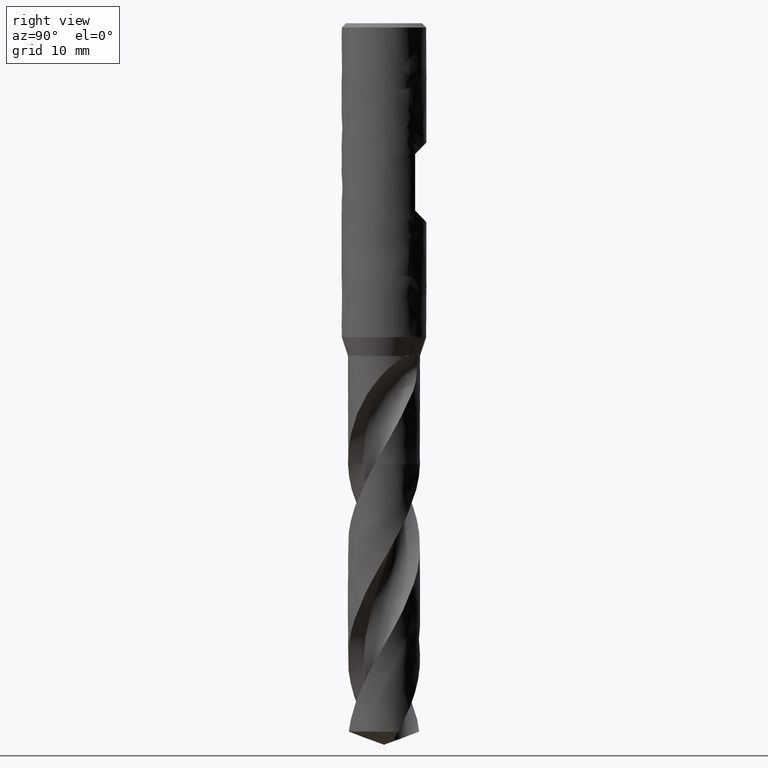
[diagram: clean part render]
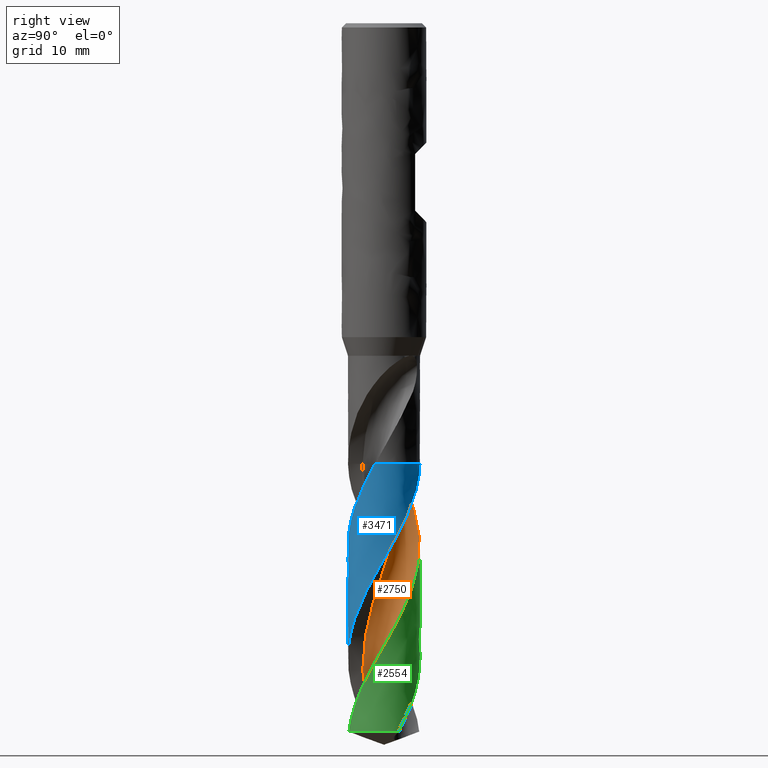
[diagram: same view with three faces highlighted in distinct colors, each labeled with its STEP entity id]
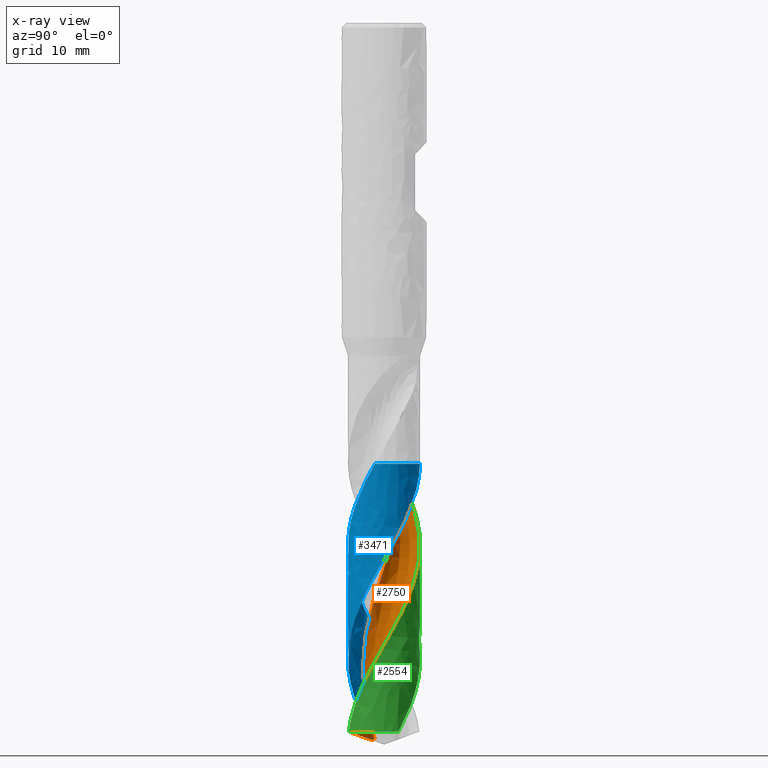
[diagram: x-ray of the same camera — body ghosted, the three highlighted faces saturated]
A machine part, right view with three faces highlighted in distinct colors.
The next image is the same camera in x-ray (body ghosted, the three faces saturated) — at least one of them is partly hidden behind the body in this view.
Their STEP definitions:

[orange] entity #2750 — the highlighted face is a freeform B-spline surface patch.
#2114 = VERTEX_POINT('', #2115);
#2115 = CARTESIAN_POINT('', (-0.257106836746543, 3.04252204616227, -62.3));
#2121 = EDGE_CURVE('', #2114, #2122, #2124, .T.);
#2122 = VERTEX_POINT('', #2123);
#2123 = CARTESIAN_POINT('', (-4.93343042311953, 1.29277386276122, -62.3));
#2124 = B_SPLINE_CURVE_WITH_KNOTS('', 3, (#2125, #2126, #2127, #2128, #2129, #2130, #2131, #2132, #2133, #2134, #2135, #2136, #2137, #2138, #2139, #2140, #2141, #2142, #2143, #2144, #2145, #2146, #2147, #2148, #2149, #2150, #2151, #2152, #2153, #2154, #2155, #2156, #2157, #2158, #2159, #2160, #2161, #2162, #2163, #2164, #2165, #2166, #2167, #2168, #2169, #2170, #2171, #2172, #2173, #2174, #2175, #2176, #2177, #2178, #2179, #2180, #2181, #2182, #2183, #2184, #2185, #2186, #2187, #2188, #2189, #2190, #2191), .UNSPECIFIED., .F., .U., (4, 3, 3, 3, 3, 3, 3, 3, 3, 3, 3, 3, 3, 3, 3, 3, 3, 3, 3, 3, 3, 3, 4), (0., 0.29734054172853, 0.594310962744745, 0.89092039328541, 1.18717597400073, 1.48308300696472, 1.77864506597676, 2.07386407108343, 2.36874033060281, 2.66327255253616, 2.85970218875942, 2.9180237345907, 2.95693453692253, 3.25424925337454, 3.55119454547451, 3.84777940066533, 4.14401082863883, 4.43989400934539, 4.73543240069403, 5.03062781074814, 5.32548043759605, 5.61998887869163, 5.83731489464803), .UNSPECIFIED.);
#2125 = CARTESIAN_POINT('', (-0.257106836746544, 3.04252204616228, -62.3));
#2126 = CARTESIAN_POINT('', (-0.282455349133685, 2.94670481619162, -62.3));
#2127 = CARTESIAN_POINT('', (-0.312499809202889, 2.85200912345214, -62.3));
#2128 = CARTESIAN_POINT('', (-0.347027850009598, 2.75910431713115, -62.3));
#2129 = CARTESIAN_POINT('', (-0.381512911332298, 2.66631515596535, -62.3));
#2130 = CARTESIAN_POINT('', (-0.420551471555258, 2.57509420010254, -62.3));
#2131 = CARTESIAN_POINT('', (-0.463868274961171, 2.48608463641988, -62.3));
#2132 = CARTESIAN_POINT('', (-0.507132423448094, 2.39718327073423, -62.3));
#2133 = CARTESIAN_POINT('', (-0.554765893278712, 2.31027934986925, -62.3));
#2134 = CARTESIAN_POINT('', (-0.606433641756793, 2.2259841356974, -62.3));
#2135 = CARTESIAN_POINT('', (-0.658039751521156, 2.14178948423104, -62.3));
#2136 = CARTESIAN_POINT('', (-0.713791275437524, 2.06000025682435, -62.3));
#2137 = CARTESIAN_POINT('', (-0.773297003756184, 1.98119037040254, -62.3));
#2138 = CARTESIAN_POINT('', (-0.832732722970725, 1.9024732046263, -62.3));
#2139 = CARTESIAN_POINT('', (-0.896052571961794, 1.82654456302002, -62.3));
#2140 = CARTESIAN_POINT('', (-0.962813276909086, 1.75393598789741, -62.3));
#2141 = CARTESIAN_POINT('', (-1.02949615097825, 1.68141206120933, -62.3));
#2142 = CARTESIAN_POINT('', (-1.09976717682971, 1.61203150736292, -62.3));
#2143 = CARTESIAN_POINT('', (-1.17313556292304, 1.54627889860523, -62.3));
#2144 = CARTESIAN_POINT('', (-1.24641879156597, 1.48060260779341, -62.3));
#2145 = CARTESIAN_POINT('', (-1.32296248970853, 1.41839319241069, -62.3));
#2146 = CARTESIAN_POINT('', (-1.40223329392419, 1.36008413330207, -62.3));
#2147 = CARTESIAN_POINT('', (-1.48141206572365, 1.30184277028469, -62.3));
#2148 = CARTESIAN_POINT('', (-1.56349518734579, 1.24735765056282, -62.3));
#2149 = CARTESIAN_POINT('', (-1.64791202116529, 1.19700755187687, -62.3));
#2150 = CARTESIAN_POINT('', (-1.73223036430339, 1.14671619758233, -62.3));
#2151 = CARTESIAN_POINT('', (-1.81907201391096, 1.10043386244951, -62.3));
#2152 = CARTESIAN_POINT('', (-1.90783465679908, 1.05848154983328, -62.3));
#2153 = CARTESIAN_POINT('', (-1.96703230090837, 1.03050268405134, -62.3));
#2154 = CARTESIAN_POINT('', (-2.02715931807454, 1.00441132557337, -62.3));
#2155 = CARTESIAN_POINT('', (-2.08803004308, 0.980288041471825, -62.3));
#2156 = CARTESIAN_POINT('', (-2.106103053072, 0.97312564354461, -62.3));
#2157 = CARTESIAN_POINT('', (-2.12424514218853, 0.966135158626293, -62.3));
#2158 = CARTESIAN_POINT('', (-2.14245136848351, 0.959318490940761, -62.3));
#2159 = CARTESIAN_POINT('', (-2.15459814653054, 0.954770566068522, -62.3));
#2160 = CARTESIAN_POINT('', (-2.16677408561285, 0.950299778091016, -62.3));
#2161 = CARTESIAN_POINT('', (-2.17897770930369, 0.945906669125849, -62.3));
#2162 = CARTESIAN_POINT('', (-2.27222474354335, 0.912339231086857, -62.3));
#2163 = CARTESIAN_POINT('', (-2.36721612646063, 0.883272781772692, -62.3));
#2164 = CARTESIAN_POINT('', (-2.46328053522866, 0.858912739509967, -62.3));
#2165 = CARTESIAN_POINT('', (-2.55922558047381, 0.834582965486015, -62.3));
#2166 = CARTESIAN_POINT('', (-2.65646657875673, 0.814890675235735, -62.3));
#2167 = CARTESIAN_POINT('', (-2.75431801250249, 0.799974693033821, -62.3));
#2168 = CARTESIAN_POINT('', (-2.85205067262471, 0.785076816087874, -62.3));
#2169 = CARTESIAN_POINT('', (-2.95062152551958, 0.774908687459054, -62.3));
#2170 = CARTESIAN_POINT('', (-3.04933736152404, 0.769541815557948, -62.3));
#2171 = CARTESIAN_POINT('', (-3.14793556217857, 0.764181339123665, -62.3));
#2172 = CARTESIAN_POINT('', (-3.24690911937935, 0.763598113075534, -62.3));
#2173 = CARTESIAN_POINT('', (-3.34556364639372, 0.767796229258299, -62.3));
#2174 = CARTESIAN_POINT('', (-3.44410219594533, 0.771989410169689, -62.3));
#2175 = CARTESIAN_POINT('', (-3.54255250401704, 0.780962460817536, -62.3));
#2176 = CARTESIAN_POINT('', (-3.64022547513592, 0.794652575013618, -62.3));
#2177 = CARTESIAN_POINT('', (-3.73778462903506, 0.808326736272894, -62.3));
#2178 = CARTESIAN_POINT('', (-3.83479548098506, 0.82673879622577, -62.3));
#2179 = CARTESIAN_POINT('', (-3.93058058970409, 0.849760180705082, -62.3));
#2180 = CARTESIAN_POINT('', (-4.02625453689031, 0.87275484816731, -62.3));
#2181 = CARTESIAN_POINT('', (-4.12092790376475, 0.900401554596005, -62.3));
#2182 = CARTESIAN_POINT('', (-4.2139411029885, 0.932507685973877, -62.3));
#2183 = CARTESIAN_POINT('', (-4.30684629456185, 0.96457653546227, -62.3));
#2184 = CARTESIAN_POINT('', (-4.398310559973, 1.00116877948838, -62.3));
#2185 = CARTESIAN_POINT('', (-4.48769814610839, 1.04203007136319, -62.3));
#2186 = CARTESIAN_POINT('', (-4.57698138881665, 1.08284366525873, -62.3));
#2187 = CARTESIAN_POINT('', (-4.66439930997172, 1.12801071992076, -62.3));
#2188 = CARTESIAN_POINT('', (-4.74934569723576, 1.17721801781404, -62.3));
#2189 = CARTESIAN_POINT('', (-4.81203001231111, 1.21352945923605, -62.3));
#2190 = CARTESIAN_POINT('', (-4.87348164675334, 1.25210460721351, -62.3));
#2191 = CARTESIAN_POINT('', (-4.93343042311953, 1.29277386276122, -62.3));
#2559 = EDGE_CURVE('', #2560, #2122, #2562, .T.);
#2560 = VERTEX_POINT('', #2561);
#2561 = CARTESIAN_POINT('', (-4.38259217942672, 2.60823422813746, -64.7830305454494));
#2562 = B_SPLINE_CURVE_WITH_KNOTS('', 3, (#2563, #2564, #2565, #2566, #2567, #2568, #2569, #2570, #2571, #2572), .UNSPECIFIED., .F., .U., (4, 3, 3, 4), (0., 0.996636051893971, 1.99297133428443, 2.86548834954752), .UNSPECIFIED.);
#2563 = CARTESIAN_POINT('', (-4.38259217942669, 2.6082342281375, -64.7830305454495));
#2564 = CARTESIAN_POINT('', (-4.46739140822527, 2.46574685758433, -64.4951568501155));
#2565 = CARTESIAN_POINT('', (-4.54526941746983, 2.31905869213751, -64.2072101096797));
#2566 = CARTESIAN_POINT('', (-4.61580424867635, 2.16895162184431, -63.9193602712711));
#2567 = CARTESIAN_POINT('', (-4.68631779355059, 2.01888985156701, -63.6315973015372));
#2568 = CARTESIAN_POINT('', (-4.74953358043584, 1.86532320755351, -63.3437603149342));
#2569 = CARTESIAN_POINT('', (-4.80510583700908, 1.70908100894613, -63.0560133404354));
#2570 = CARTESIAN_POINT('', (-4.85377192391146, 1.57225560569434, -62.8040257457189));
#2571 = CARTESIAN_POINT('', (-4.89660770582101, 1.43329520142322, -62.5519626316575));
#2572 = CARTESIAN_POINT('', (-4.93343042311953, 1.29277386276122, -62.3));
#2575 = VERTEX_POINT('', #2576);
#2576 = CARTESIAN_POINT('', (2.03612363862967, -4.67591707884276, -98.3845980071974));
#2715 = EDGE_CURVE('', #2575, #2716, #2718, .T.);
#2716 = VERTEX_POINT('', #2717);
#2717 = CARTESIAN_POINT('', (1.08917575655193, -4.98233842400729, -100.143751805242));
#2718 = B_SPLINE_CURVE_WITH_KNOTS('', 3, (#2719, #2720, #2721, #2722, #2723, #2724, #2725), .UNSPECIFIED., .F., .U., (4, 3, 4), (0., 0.99630547880787, 2.02178874965934), .UNSPECIFIED.);
#2719 = CARTESIAN_POINT('', (2.03612363862959, -4.67591707884279, -98.3845980071975));
#2720 = CARTESIAN_POINT('', (1.88596879716352, -4.74130186155143, -98.6735097182545));
#2721 = CARTESIAN_POINT('', (1.73263819193812, -4.79945555111464, -98.9625148271074));
#2722 = CARTESIAN_POINT('', (1.57692810990464, -4.85008224014718, -99.2514489575283));
#2723 = CARTESIAN_POINT('', (1.41665790400423, -4.90219158187598, -99.5488448099322));
#2724 = CARTESIAN_POINT('', (1.25377817229733, -4.94635512752227, -99.8463338122987));
#2725 = CARTESIAN_POINT('', (1.08917575655193, -4.98233842400729, -100.143751805242));
#2750 = ADVANCED_FACE('', (#2751), #2969, .T.);
#2751 = FACE_OUTER_BOUND('', #2752, .T.);
#2752 = EDGE_LOOP('', (#2753, #2754, #2803, #2924, #2925, #2968));
#2753 = ORIENTED_EDGE('', *, *, #2121, .F.);
#2754 = ORIENTED_EDGE('', *, *, #2755, .F.);
#2755 = EDGE_CURVE('', #2756, #2114, #2758, .T.);
#2756 = VERTEX_POINT('', #2757);
#2757 = CARTESIAN_POINT('', (-2.71820586783196, -1.39123076832965, -100.888598775299));
#2758 = (
   BOUNDED_CURVE ()
   B_SPLINE_CURVE (3, (#2759, #2760, #2761, #2762, #2763, #2764, #2765, #2766, #2767, #2768, #2769, #2770, #2771, #2772, #2773, #2774, #2775, #2776, #2777, #2778, #2779, #2780, #2781, #2782, #2783, #2784, #2785, #2786, #2787, #2788, #2789, #2790, #2791, #2792, #2793, #2794, #2795, #2796, #2797, #2798, #2799, #2800, #2801, #2802), .UNSPECIFIED., .F., .U.)
   B_SPLINE_CURVE_WITH_KNOTS ((4, 1, 1, 1, 1, 1, 1, 1, 1, 1, 1, 1, 1, 1, 1, 1, 1, 1, 1, 1, 1, 1, 1, 1, 1, 1, 1, 1, 1, 1, 1, 1, 1, 1, 1, 1, 1, 1, 1, 1, 1, 4), (1.16140122470107, 1.89896551724138, 2.84844827586207, 3.79793103448276, 4.74741379310345, 5.69689655172414, 6.64637931034483, 7.59586206896552, 8.54534482758621, 9.4948275862069, 10.4443103448276, 11.3937931034483, 12.343275862069, 13.2927586206897, 14.2422413793103, 15.191724137931, 16.1412068965517, 17.0906896551724, 18.0401724137931, 18.9896551724138, 19.9391379310345, 20.8886206896552, 21.8381034482759, 22.7875862068966, 23.7370689655172, 24.6865517241379, 25.6360344827586, 26.5855172413793, 27.535, 28.4844827586207, 29.4339655172414, 30.3834482758621, 31.3329310344828, 32.2824137931035, 33.2318965517241, 34.1813793103448, 35.1308620689655, 36.0803448275862, 37.0298275862069, 37.9793103448276, 38.9287931034483, 39.75), .UNSPECIFIED.)
   CURVE ()
   GEOMETRIC_REPRESENTATION_ITEM ()
   RATIONAL_B_SPLINE_CURVE ((1., 1., 1., 1., 1., 1., 1., 1., 1., 1., 1., 1., 1., 1., 1., 1., 1., 1., 1., 1., 1., 1., 1., 1., 1., 1., 1., 1., 1., 1., 1., 1., 1., 1., 1., 1., 1., 1., 1., 1., 1., 1., 1., 1.))
   REPRESENTATION_ITEM ('')
);
#2759 = CARTESIAN_POINT('', (-2.71820586783196, -1.39123076832965, -100.888598775299));
#2760 = CARTESIAN_POINT('', (-2.67800368655246, -1.46514663058446, -100.642744011119));
#2761 = CARTESIAN_POINT('', (-2.57924375892695, -1.63028681439309, -100.080394994065));
#2762 = CARTESIAN_POINT('', (-2.40177920092845, -1.87239547549261, -99.2015517241379));
#2763 = CARTESIAN_POINT('', (-2.18418617659598, -2.1117958861822, -98.2520689655172));
#2764 = CARTESIAN_POINT('', (-1.94322415103394, -2.32652181599722, -97.3025862068965));
#2765 = CARTESIAN_POINT('', (-1.68163054986733, -2.51434633634708, -96.3531034482759));
#2766 = CARTESIAN_POINT('', (-1.40234772836616, -2.67333854485626, -95.4036206896552));
#2767 = CARTESIAN_POINT('', (-1.1084934409964, -2.80188332706551, -94.4541379310345));
#2768 = CARTESIAN_POINT('', (-0.803327153716364, -2.89869623241292, -93.5046551724138));
#2769 = CARTESIAN_POINT('', (-0.490215797153581, -2.96283537528057, -92.5551724137931));
#2770 = CARTESIAN_POINT('', (-0.172598426826535, -2.9937097214324, -91.6056896551724));
#2771 = CARTESIAN_POINT('', (0.146049627894984, -2.99108384550681, -90.6562068965517));
#2772 = CARTESIAN_POINT('', (0.462252838866228, -2.95507909318308, -89.706724137931));
#2773 = CARTESIAN_POINT('', (0.772571411640423, -2.88617116470713, -88.7572413793104));
#2774 = CARTESIAN_POINT('', (1.07363673334712, -2.78518415620211, -87.8077586206897));
#2775 = CARTESIAN_POINT('', (1.36218599456435, -2.65328113123383, -86.858275862069));
#2776 = CARTESIAN_POINT('', (1.63509565452084, -2.49195132578619, -85.9087931034483));
#2777 = CARTESIAN_POINT('', (1.88941343058823, -2.30299412061867, -84.9593103448276));
#2778 = CARTESIAN_POINT('', (2.12238850786663, -2.08849994415286, -84.0098275862069));
#2779 = CARTESIAN_POINT('', (2.3314996819376, -1.85082829675761, -83.0603448275862));
#2780 = CARTESIAN_POINT('', (2.5144811675794, -1.59258311324993, -82.1108620689655));
#2781 = CARTESIAN_POINT('', (2.66934582819677, -1.31658570443564, -81.1613793103448));
#2782 = CARTESIAN_POINT('', (2.79440560474272, -1.02584554038766, -80.2118965517242));
#2783 = CARTESIAN_POINT('', (2.88828894880416, -0.723529157737962, -79.2624137931035));
#2784 = CARTESIAN_POINT('', (2.94995509208006, -0.412927490389294, -78.3129310344828));
#2785 = CARTESIAN_POINT('', (2.97870501348361, -0.0974219376016515, -77.3634482758621));
#2786 = CARTESIAN_POINT('', (2.97418899531812, 0.219550504739895, -76.4139655172414));
#2787 = CARTESIAN_POINT('', (2.93641069117697, 0.534532714809726, -75.4644827586207));
#2788 = CARTESIAN_POINT('', (2.86572766014901, 0.844083176437823, -74.515));
#2789 = CARTESIAN_POINT('', (2.76284835434865, 1.14481162728891, -73.5655172413793));
#2790 = CARTESIAN_POINT('', (2.62882557937912, 1.43341427915249, -72.6160344827586));
#2791 = CARTESIAN_POINT('', (2.46504648019532, 1.70670826807483, -71.6665517241379));
#2792 = CARTESIAN_POINT('', (2.27321913629262, 1.96166499965951, -70.7170689655173));
#2793 = CARTESIAN_POINT('', (2.05535588519287, 2.19544205645621, -69.7675862068966));
#2794 = CARTESIAN_POINT('', (1.81375351199637, 2.40541337233901, -68.8181034482759));
#2795 = CARTESIAN_POINT('', (1.5509705180985, 2.58919729471314, -67.8686206896552));
#2796 = CARTESIAN_POINT('', (1.26980154119252, 2.74468254022138, -66.9191379310345));
#2797 = CARTESIAN_POINT('', (0.973249658448006, 2.8700506974988, -65.9696551724138));
#2798 = CARTESIAN_POINT('', (0.664494968403497, 2.96379907324804, -65.0201724137931));
#2799 = CARTESIAN_POINT('', (0.346866683593951, 3.02474859333157, -64.0706896551724));
#2800 = CARTESIAN_POINT('', (0.0383422596130696, 3.05086140602042, -63.1639655172414));
#2801 = CARTESIAN_POINT('', (-0.163588209232107, 3.04805946740082, -62.5737356321839));
#2802 = CARTESIAN_POINT('', (-0.257106836746543, 3.04252204616227, -62.3));
#2803 = ORIENTED_EDGE('', *, *, #2804, .T.);
#2804 = EDGE_CURVE('', #2756, #2716, #2805, .T.);
#2805 = B_SPLINE_CURVE_WITH_KNOTS('', 3, (#2806, #2807, #2808, #2809, #2810, #2811, #2812, #2813, #2814, #2815, #2816, #2817, #2818, #2819, #2820, #2821, #2822, #2823, #2824, #2825, #2826, #2827, #2828, #2829, #2830, #2831, #2832, #2833, #2834, #2835, #2836, #2837, #2838, #2839, #2840, #2841, #2842, #2843, #2844, #2845, #2846, #2847, #2848, #2849, #2850, #2851, #2852, #2853, #2854, #2855, #2856, #2857, #2858, #2859, #2860, #2861, #2862, #2863, #2864, #2865, #2866, #2867, #2868, #2869, #2870, #2871, #2872, #2873, #2874, #2875, #2876, #2877, #2878, #2879, #2880, #2881, #2882, #2883, #2884, #2885, #2886, #2887, #2888, #2889, #2890, #2891, #2892, #2893, #2894, #2895, #2896, #2897, #2898, #2899, #2900, #2901, #2902, #2903, #2904, #2905, #2906, #2907, #2908, #2909, #2910, #2911, #2912, #2913, #2914, #2915, #2916, #2917, #2918, #2919, #2920, #2921, #2922, #2923), .UNSPECIFIED., .F., .U., (4, 3, 3, 3, 3, 3, 3, 3, 3, 3, 3, 3, 3, 3, 3, 3, 3, 3, 3, 3, 3, 3, 3, 3, 3, 3, 3, 3, 3, 3, 3, 3, 3, 3, 3, 3, 3, 3, 3, 4), (0., 0.197306370533848, 0.394423993291466, 0.591284577874738, 0.722422164479535, 0.853452057676063, 0.984370018182079, 1.11518034835663, 1.24589873893393, 1.376553859752, 1.50718636764503, 1.63784435202513, 1.76857546973089, 1.89941778367477, 2.03039249273983, 2.16150121680051, 2.29272839484123, 2.42404711866026, 2.55542579202223, 2.68683356108203, 2.81824366471132, 2.94963484062096, 2.98857061384949, 3.12048463178685, 3.15945341035335, 3.18542764120953, 3.38428003435632, 3.58266491736919, 3.7806617083773, 3.97833639700476, 4.17574201147586, 4.37292035445424, 4.5699039882705, 4.76671805383818, 4.96338179224604, 5.15990976010024, 5.35631277476365, 5.5525986366536, 5.84619914615226, 6.08548079583741), .UNSPECIFIED.);
#2806 = CARTESIAN_POINT('', (-2.71820586783196, -1.39123076832965, -100.888598775299));
#2807 = CARTESIAN_POINT('', (-2.65804491942693, -1.37628190890161, -100.910569793716));
#2808 = CARTESIAN_POINT('', (-2.59713375919126, -1.36381666360218, -100.932338706397));
#2809 = CARTESIAN_POINT('', (-2.53573183960258, -1.35395796135123, -100.953743005549));
#2810 = CARTESIAN_POINT('', (-2.47438865849127, -1.3441086901598, -100.975126828861));
#2811 = CARTESIAN_POINT('', (-2.41245445699549, -1.33684529968185, -100.996182347865));
#2812 = CARTESIAN_POINT('', (-2.35020709891112, -1.33226527895113, -101.0167140729));
#2813 = CARTESIAN_POINT('', (-2.28804091036936, -1.32769123049295, -101.037219024899));
#2814 = CARTESIAN_POINT('', (-2.22545389893128, -1.32578631931619, -101.057237528091));
#2815 = CARTESIAN_POINT('', (-2.16274133010671, -1.3266146216676, -101.076536688701));
#2816 = CARTESIAN_POINT('', (-2.12096570019659, -1.32716639068512, -101.089392717506));
#2817 = CARTESIAN_POINT('', (-2.07909212195781, -1.32893033166774, -101.101941970002));
#2818 = CARTESIAN_POINT('', (-2.0372123010788, -1.33191485552585, -101.114105785215));
#2819 = CARTESIAN_POINT('', (-1.99536687293772, -1.33489692841963, -101.126259611205));
#2820 = CARTESIAN_POINT('', (-1.9534794459268, -1.33910028080339, -101.138038937738));
#2821 = CARTESIAN_POINT('', (-1.91164498109037, -1.34452282819897, -101.149358020422));
#2822 = CARTESIAN_POINT('', (-1.8698462534746, -1.34994074336671, -101.160667433746));
#2823 = CARTESIAN_POINT('', (-1.82806327116222, -1.35658075342114, -101.171527264508));
#2824 = CARTESIAN_POINT('', (-1.78639405607999, -1.36442818440313, -101.181846402369));
#2825 = CARTESIAN_POINT('', (-1.74475909811125, -1.37226916385169, -101.192157056656));
#2826 = CARTESIAN_POINT('', (-1.70319936969391, -1.38132297593795, -101.201937125291));
#2827 = CARTESIAN_POINT('', (-1.66181549859938, -1.39156013086584, -101.211093333448));
#2828 = CARTESIAN_POINT('', (-1.62046071401841, -1.40179009064408, -101.220243106195));
#2829 = CARTESIAN_POINT('', (-1.57924221441911, -1.41321160887115, -101.228778203828));
#2830 = CARTESIAN_POINT('', (-1.53826225625986, -1.4257783832958, -101.23660813588));
#2831 = CARTESIAN_POINT('', (-1.49730213304559, -1.43833907520376, -101.244434278123));
#2832 = CARTESIAN_POINT('', (-1.45654043406463, -1.45205623330067, -101.251563083231));
#2833 = CARTESIAN_POINT('', (-1.41607924692096, -1.4668655794752, -101.257913420084));
#2834 = CARTESIAN_POINT('', (-1.37562506253221, -1.48167236254593, -101.264262657862));
#2835 = CARTESIAN_POINT('', (-1.33543145089596, -1.49758551362076, -101.26983946748));
#2836 = CARTESIAN_POINT('', (-1.29559752899514, -1.51452320063262, -101.274579520698));
#2837 = CARTESIAN_POINT('', (-1.25575583851963, -1.53146419090161, -101.279320498341));
#2838 = CARTESIAN_POINT('', (-1.21623499955589, -1.54944652567603, -101.283228657359));
#2839 = CARTESIAN_POINT('', (-1.17712749645901, -1.56837344443146, -101.286263334971));
#2840 = CARTESIAN_POINT('', (-1.13799810367989, -1.58731095717026, -101.289299711185));
#2841 = CARTESIAN_POINT('', (-1.09924531693131, -1.6072118023002, -101.291464360335));
#2842 = CARTESIAN_POINT('', (-1.06095107279179, -1.62796920444919, -101.292744778359));
#2843 = CARTESIAN_POINT('', (-1.02262425663755, -1.64874426226482, -101.294026285472));
#2844 = CARTESIAN_POINT('', (-0.984722280409446, -1.67039561231515, -101.294423336147));
#2845 = CARTESIAN_POINT('', (-0.947313311816777, -1.69281295692676, -101.293952322729));
#2846 = CARTESIAN_POINT('', (-0.909866490294265, -1.71525298492699, -101.293480832707));
#2847 = CARTESIAN_POINT('', (-0.872882661733677, -1.7384786943426, -101.292139510622));
#2848 = CARTESIAN_POINT('', (-0.836414579848258, -1.76238299117097, -101.2899703637));
#2849 = CARTESIAN_POINT('', (-0.799909183355546, -1.78631174718124, -101.287798997278));
#2850 = CARTESIAN_POINT('', (-0.763893511461107, -1.81093781906067, -101.284797034115));
#2851 = CARTESIAN_POINT('', (-0.728405210403215, -1.83616285789273, -101.281025817684));
#2852 = CARTESIAN_POINT('', (-0.692884846410263, -1.86141068701787, -101.277251194038));
#2853 = CARTESIAN_POINT('', (-0.657869772890752, -1.8872746163872, -101.272704041637));
#2854 = CARTESIAN_POINT('', (-0.623384506932967, -1.91366850790358, -101.267457534243));
#2855 = CARTESIAN_POINT('', (-0.588875183607197, -1.94008081214039, -101.262207366817));
#2856 = CARTESIAN_POINT('', (-0.554877203251021, -1.96703829995369, -101.256254439765));
#2857 = CARTESIAN_POINT('', (-0.521404892399509, -1.99446830979651, -101.249676717076));
#2858 = CARTESIAN_POINT('', (-0.487917300789254, -2.02191084197052, -101.243095991529));
#2859 = CARTESIAN_POINT('', (-0.454940043743815, -2.0498391674556, -101.235887164759));
#2860 = CARTESIAN_POINT('', (-0.422480392023449, -2.07819362858799, -101.228127470385));
#2861 = CARTESIAN_POINT('', (-0.390013551646095, -2.10655436922384, -101.220366057514));
#2862 = CARTESIAN_POINT('', (-0.358051572372301, -2.13535271985076, -101.212050677384));
#2863 = CARTESIAN_POINT('', (-0.326597455067584, -2.16454050037238, -101.203254153295));
#2864 = CARTESIAN_POINT('', (-0.295142778954034, -2.19372879943946, -101.194457472928));
#2865 = CARTESIAN_POINT('', (-0.264185296200988, -2.22331646018132, -101.185176780856));
#2866 = CARTESIAN_POINT('', (-0.233725920127184, -2.25326481666383, -101.175478461903));
#2867 = CARTESIAN_POINT('', (-0.203270931284763, -2.28320885951993, -101.165781539853));
#2868 = CARTESIAN_POINT('', (-0.17330500671891, -2.31352227303972, -101.155664336539));
#2869 = CARTESIAN_POINT('', (-0.143828521566357, -2.34417392635257, -101.145186010459));
#2870 = CARTESIAN_POINT('', (-0.135093614267382, -2.35325707683209, -101.142080918163));
#2871 = CARTESIAN_POINT('', (-0.126401244900596, -2.36237042394273, -101.138943914069));
#2872 = CARTESIAN_POINT('', (-0.117751428553628, -2.37151326027539, -101.135776415485));
#2873 = CARTESIAN_POINT('', (-0.0884459355805855, -2.40248910012596, -101.125044961339));
#2874 = CARTESIAN_POINT('', (-0.0596243119012264, -2.43380792260671, -101.113962302656));
#2875 = CARTESIAN_POINT('', (-0.0312876899316724, -2.46544547114778, -101.10257897895));
#2876 = CARTESIAN_POINT('', (-0.0229167558632496, -2.47479153339925, -101.099216226243));
#2877 = CARTESIAN_POINT('', (-0.0145877859703035, -2.4841658424397, -101.095827046618));
#2878 = CARTESIAN_POINT('', (-0.00630082851640912, -2.49356784335507, -101.09241263049));
#2879 = CARTESIAN_POINT('', (-0.000777243895058299, -2.49983464850703, -101.090136787212));
#2880 = CARTESIAN_POINT('', (0.00472773335828597, -2.50611382258729, -101.087849707203));
#2881 = CARTESIAN_POINT('', (0.01021408647375, -2.51240520805956, -101.085551730955));
#2882 = CARTESIAN_POINT('', (0.0522162713584223, -2.56057052484213, -101.067958983783));
#2883 = CARTESIAN_POINT('', (0.093138302759556, -2.60946321167422, -101.049725275422));
#2884 = CARTESIAN_POINT('', (0.132968405922923, -2.65902118734295, -101.030986119664));
#2885 = CARTESIAN_POINT('', (0.172704866879782, -2.70846265017785, -101.01229102043));
#2886 = CARTESIAN_POINT('', (0.211371709476283, -2.7585879876794, -100.993084391983));
#2887 = CARTESIAN_POINT('', (0.248949197787304, -2.80934576898298, -100.973474921786));
#2888 = CARTESIAN_POINT('', (0.286453174838036, -2.8600042549733, -100.953903812772));
#2889 = CARTESIAN_POINT('', (0.322887062730067, -2.91131326157418, -100.933923254649));
#2890 = CARTESIAN_POINT('', (0.35822331055729, -2.96322699226683, -100.913621211388));
#2891 = CARTESIAN_POINT('', (0.393502073162198, -3.01505626938749, -100.893352195614));
#2892 = CARTESIAN_POINT('', (0.427700294787377, -3.06750841378425, -100.872754666189));
#2893 = CARTESIAN_POINT('', (0.460783181429735, -3.12053991661193, -100.851900880502));
#2894 = CARTESIAN_POINT('', (0.4938210357522, -3.17349923312692, -100.831075480922));
#2895 = CARTESIAN_POINT('', (0.525759070536293, -3.2270565348064, -100.809986408632));
#2896 = CARTESIAN_POINT('', (0.556555909696757, -3.28116828421293, -100.788694166723));
#2897 = CARTESIAN_POINT('', (0.587317292704537, -3.33521773519854, -100.7674264384));
#2898 = CARTESIAN_POINT('', (0.616951793745723, -3.38984106709704, -100.745947727604));
#2899 = CARTESIAN_POINT('', (0.645412072551522, -3.44499300869769, -100.724309844796));
#2900 = CARTESIAN_POINT('', (0.67384424747453, -3.50009048900113, -100.70269332891));
#2901 = CARTESIAN_POINT('', (0.701115555992858, -3.55573708898829, -100.680909399084));
#2902 = CARTESIAN_POINT('', (0.727173234972142, -3.61188444298967, -100.659003539809));
#2903 = CARTESIAN_POINT('', (0.753208482874787, -3.66798346399863, -100.637116537625));
#2904 = CARTESIAN_POINT('', (0.778042644643233, -3.72460507015013, -100.615098887729));
#2905 = CARTESIAN_POINT('', (0.801618010825643, -3.78169661700834, -100.592991591584));
#2906 = CARTESIAN_POINT('', (0.825175370074301, -3.83874455717582, -100.570901181057));
#2907 = CARTESIAN_POINT('', (0.847485735324045, -3.8962858254713, -100.54871187285));
#2908 = CARTESIAN_POINT('', (0.868486894527547, -3.9542623844018, -100.526461641029));
#2909 = CARTESIAN_POINT('', (0.889473555181211, -4.01219891811174, -100.504226770079));
#2910 = CARTESIAN_POINT('', (0.909162078865363, -4.07059592262061, -100.481921127067));
#2911 = CARTESIAN_POINT('', (0.927486203102701, -4.12938885569411, -100.459580830707));
#2912 = CARTESIAN_POINT('', (0.945798676795759, -4.1881444080087, -100.437254738389));
#2913 = CARTESIAN_POINT('', (0.962757042209438, -4.24732310585606, -100.414883477756));
#2914 = CARTESIAN_POINT('', (0.978291493744042, -4.30685275144795, -100.392502277387));
#2915 = CARTESIAN_POINT('', (0.993816679106818, -4.36634688809872, -100.370134427218));
#2916 = CARTESIAN_POINT('', (1.00792736557097, -4.42622148114556, -100.347745381594));
#2917 = CARTESIAN_POINT('', (1.02055081813014, -4.48639546426671, -100.325370292804));
#2918 = CARTESIAN_POINT('', (1.03943272876456, -4.57640251792215, -100.291902077592));
#2919 = CARTESIAN_POINT('', (1.05500533354808, -4.66717397637572, -100.258430714473));
#2920 = CARTESIAN_POINT('', (1.06701619941008, -4.758394561716, -100.225077129991));
#2921 = CARTESIAN_POINT('', (1.07680494195183, -4.8327384795203, -100.19789427281));
#2922 = CARTESIAN_POINT('', (1.08423763247139, -4.90745338682918, -100.170762755928));
#2923 = CARTESIAN_POINT('', (1.08917575655193, -4.98233842400729, -100.143751805242));
#2924 = ORIENTED_EDGE('', *, *, #2715, .F.);
#2925 = ORIENTED_EDGE('', *, *, #2926, .T.);
#2926 = EDGE_CURVE('', #2575, #2560, #2927, .T.);
#2927 = (
   BOUNDED_CURVE ()
   B_SPLINE_CURVE (3, (#2928, #2929, #2930, #2931, #2932, #2933, #2934, #2935, #2936, #2937, #2938, #2939, #2940, #2941, #2942, #2943, #2944, #2945, #2946, #2947, #2948, #2949, #2950, #2951, #2952, #2953, #2954, #2955, #2956, #2957, #2958, #2959, #2960, #2961, #2962, #2963, #2964, #2965, #2966, #2967), .UNSPECIFIED., .F., .U.)
   B_SPLINE_CURVE_WITH_KNOTS ((4, 1, 1, 1, 1, 1, 1, 1, 1, 1, 1, 1, 1, 1, 1, 1, 1, 1, 1, 1, 1, 1, 1, 1, 1, 1, 1, 1, 1, 1, 1, 1, 1, 1, 1, 1, 1, 4), (3.66540199280261, 3.79793103448276, 4.74741379310345, 5.69689655172414, 6.64637931034483, 7.59586206896552, 8.54534482758621, 9.4948275862069, 10.4443103448276, 11.3937931034483, 12.343275862069, 13.2927586206897, 14.2422413793103, 15.191724137931, 16.1412068965517, 17.0906896551724, 18.0401724137931, 18.9896551724138, 19.9391379310345, 20.8886206896552, 21.8381034482759, 22.7875862068966, 23.7370689655172, 24.6865517241379, 25.6360344827586, 26.5855172413793, 27.535, 28.4844827586207, 29.4339655172414, 30.3834482758621, 31.3329310344828, 32.2824137931035, 33.2318965517241, 34.1813793103448, 35.1308620689655, 36.0803448275862, 37.0298275862069, 37.2669694545506), .UNSPECIFIED.)
   CURVE ()
   GEOMETRIC_REPRESENTATION_ITEM ()
   RATIONAL_B_SPLINE_CURVE ((1., 1., 1., 1., 1., 1., 1., 1., 1., 1., 1., 1., 1., 1., 1., 1., 1., 1., 1., 1., 1., 1., 1., 1., 1., 1., 1., 1., 1., 1., 1., 1., 1., 1., 1., 1., 1., 1., 1., 1.))
   REPRESENTATION_ITEM ('')
);
#2928 = CARTESIAN_POINT('', (2.03612363862966, -4.67591707884276, -98.3845980071974));
#2929 = CARTESIAN_POINT('', (2.05904691755703, -4.66533095297091, -98.3404216599707));
#2930 = CARTESIAN_POINT('', (2.24553470798338, -4.57754216263702, -97.9797510598704));
#2931 = CARTESIAN_POINT('', (2.58516082471981, -4.39201269217317, -97.3025862068965));
#2932 = CARTESIAN_POINT('', (3.03043464658973, -4.08399894735943, -96.3531034482759));
#2933 = CARTESIAN_POINT('', (3.44005686478465, -3.73167772991225, -95.4036206896552));
#2934 = CARTESIAN_POINT('', (3.80970768364461, -3.33907248147393, -94.4541379310345));
#2935 = CARTESIAN_POINT('', (4.13551075183032, -2.91061795094906, -93.5046551724138));
#2936 = CARTESIAN_POINT('', (4.41407136600379, -2.45111269771691, -92.5551724137931));
#2937 = CARTESIAN_POINT('', (4.64250956919093, -1.96566782092922, -91.6056896551724));
#2938 = CARTESIAN_POINT('', (4.81848795062136, -1.45965288434313, -90.6562068965517));
#2939 = CARTESIAN_POINT('', (4.94023387956998, -0.938639453939819, -89.706724137931));
#2940 = CARTESIAN_POINT('', (5.00655599235212, -0.408342838279849, -88.7572413793104));
#2941 = CARTESIAN_POINT('', (5.01685479681468, 0.125437406322146, -87.8077586206897));
#2942 = CARTESIAN_POINT('', (4.97112731606341, 0.656877624262069, -86.858275862069));
#2943 = CARTESIAN_POINT('', (4.86996574782864, 1.18019028087984, -85.9087931034483));
#2944 = CARTESIAN_POINT('', (4.71455017123535, 1.6896836735741, -84.9593103448276));
#2945 = CARTESIAN_POINT('', (4.50663538733011, 2.17982055992038, -84.0098275862069));
#2946 = CARTESIAN_POINT('', (4.24853203337416, 2.64527514058799, -83.0603448275862));
#2947 = CARTESIAN_POINT('', (3.94308216314486, 3.08098785140746, -82.1108620689655));
#2948 = CARTESIAN_POINT('', (3.59362953591163, 3.4822174401353, -81.1613793103448));
#2949 = CARTESIAN_POINT('', (3.20398490496828, 3.84458982913733, -80.2118965517242));
#2950 = CARTESIAN_POINT('', (2.77838664224105, 4.16414329514357, -79.2624137931035));
#2951 = CARTESIAN_POINT('', (2.32145707819263, 4.43736953117657, -78.3129310344828));
#2952 = CARTESIAN_POINT('', (1.83815497567433, 4.66125019345112, -77.3634482758621));
#2953 = CARTESIAN_POINT('', (1.33372459222633, 4.83328857718964, -76.4139655172414));
#2954 = CARTESIAN_POINT('', (0.813641817308861, 4.95153610957786, -75.4644827586207));
#2955 = CARTESIAN_POINT('', (0.283557898774314, 5.01461339515182, -74.515));
#2956 = CARTESIAN_POINT('', (-0.250758703566054, 5.02172559840997, -73.5655172413793));
#2957 = CARTESIAN_POINT('', (-0.783481780776926, 4.97267199996255, -72.6160344827586));
#2958 = CARTESIAN_POINT('', (-1.3087875824449, 4.8678496158014, -71.6665517241379));
#2959 = CARTESIAN_POINT('', (-1.82091519178653, 4.70825082337951, -70.7170689655173));
#2960 = CARTESIAN_POINT('', (-2.31422647358069, 4.49545499457836, -69.7675862068966));
#2961 = CARTESIAN_POINT('', (-2.78326504979908, 4.2316141868753, -68.8181034482759));
#2962 = CARTESIAN_POINT('', (-3.22281358212355, 3.91943301577549, -67.8686206896552));
#2963 = CARTESIAN_POINT('', (-3.62794932955856, 3.56214282590782, -66.9191379310345));
#2964 = CARTESIAN_POINT('', (-3.99409543549181, 3.16347055845256, -65.9696551724138));
#2965 = CARTESIAN_POINT('', (-4.23630405984914, 2.83660409420073, -65.2576193772188));
#2966 = CARTESIAN_POINT('', (-4.35863997865169, 2.64654304782001, -64.8620778348973));
#2967 = CARTESIAN_POINT('', (-4.38259217942669, 2.6082342281375, -64.7830305454495));
#2968 = ORIENTED_EDGE('', *, *, #2559, .T.);
#2969 = (
   BOUNDED_SURFACE ()
   B_SPLINE_SURFACE (3, 2, ((#2970, #2971, #2972, #2973, #2974), (#2975, #2976, #2977, #2978, #2979), (#2980, #2981, #2982, #2983, #2984), (#2985, #2986, #2987, #2988, #2989), (#2990, #2991, #2992, #2993, #2994), (#2995, #2996, #2997, #2998, #2999), (#3000, #3001, #3002, #3003, #3004), (#3005, #3006, #3007, #3008, #3009), (#3010, #3011, #3012, #3013, #3014), (#3015, #3016, #3017, #3018, #3019), (#3020, #3021, #3022, #3023, #3024), (#3025, #3026, #3027, #3028, #3029), (#3030, #3031, #3032, #3033, #3034), (#3035, #3036, #3037, #3038, #3039), (#3040, #3041, #3042, #3043, #3044), (#3045, #3046, #3047, #3048, #3049), (#3050, #3051, #3052, #3053, #3054), (#3055, #3056, #3057, #3058, #3059), (#3060, #3061, #3062, #3063, #3064), (#3065, #3066, #3067, #3068, #3069), (#3070, #3071, #3072, #3073, #3074), (#3075, #3076, #3077, #3078, #3079), (#3080, #3081, #3082, #3083, #3084), (#3085, #3086, #3087, #3088, #3089), (#3090, #3091, #3092, #3093, #3094), (#3095, #3096, #3097, #3098, #3099), (#3100, #3101, #3102, #3103, #3104), (#3105, #3106, #3107, #3108, #3109), (#3110, #3111, #3112, #3113, #3114), (#3115, #3116, #3117, #3118, #3119), (#3120, #3121, #3122, #3123, #3124), (#3125, #3126, #3127, #3128, #3129), (#3130, #3131, #3132, #3133, #3134), (#3135, #3136, #3137, #3138, #3139), (#3140, #3141, #3142, #3143, #3144), (#3145, #3146, #3147, #3148, #3149), (#3150, #3151, #3152, #3153, #3154), (#3155, #3156, #3157, #3158, #3159), (#3160, #3161, #3162, #3163, #3164), (#3165, #3166, #3167, #3168, #3169), (#3170, #3171, #3172, #3173, #3174), (#3175, #3176, #3177, #3178, #3179), (#3180, #3181, #3182, #3183, #3184), (#3185, #3186, #3187, #3188, #3189)), .UNSPECIFIED., .F., .F., .U.)
   B_SPLINE_SURFACE_WITH_KNOTS ((4, 1, 1, 1, 1, 1, 1, 1, 1, 1, 1, 1, 1, 1, 1, 1, 1, 1, 1, 1, 1, 1, 1, 1, 1, 1, 1, 1, 1, 1, 1, 1, 1, 1, 1, 1, 1, 1, 1, 1, 1, 4), (3, 2, 3), (0.755576663841181, 1.89896551724138, 2.84844827586207, 3.79793103448276, 4.74741379310345, 5.69689655172414, 6.64637931034483, 7.59586206896552, 8.54534482758621, 9.4948275862069, 10.4443103448276, 11.3937931034483, 12.343275862069, 13.2927586206897, 14.2422413793103, 15.191724137931, 16.1412068965517, 17.0906896551724, 18.0401724137931, 18.9896551724138, 19.9391379310345, 20.8886206896552, 21.8381034482759, 22.7875862068966, 23.7370689655172, 24.6865517241379, 25.6360344827586, 26.5855172413793, 27.535, 28.4844827586207, 29.4339655172414, 30.3834482758621, 31.3329310344828, 32.2824137931035, 33.2318965517241, 34.1813793103448, 35.1308620689655, 36.0803448275862, 37.0298275862069, 37.9793103448276, 38.9287931034483, 39.7500000000062), (0., 0.5, 1.), .UNSPECIFIED.)
   GEOMETRIC_REPRESENTATION_ITEM ()
   RATIONAL_B_SPLINE_SURFACE (((1., 0.887010833178221, 1., 0.887010833178221, 1.), (1., 0.887010833178221, 1., 0.887010833178221, 1.), (1., 0.887010833178221, 1., 0.887010833178221, 1.), (1., 0.887010833178222, 1., 0.887010833178222, 1.), (1., 0.887010833178222, 1., 0.887010833178222, 1.), (1., 0.887010833178222, 1., 0.887010833178222, 1.), (1., 0.887010833178222, 1., 0.887010833178222, 1.), (1., 0.887010833178221, 1., 0.887010833178221, 1.), (1., 0.887010833178222, 1., 0.887010833178222, 1.), (1., 0.887010833178222, 1., 0.887010833178222, 1.), (1., 0.887010833178221, 1., 0.887010833178221, 1.), (1., 0.887010833178222, 1., 0.887010833178222, 1.), (1., 0.887010833178222, 1., 0.887010833178222, 1.), (1., 0.887010833178222, 1., 0.887010833178222, 1.), (1., 0.887010833178222, 1., 0.887010833178222, 1.), (1., 0.887010833178222, 1., 0.887010833178222, 1.), (1., 0.887010833178222, 1., 0.887010833178222, 1.), (1., 0.887010833178222, 1., 0.887010833178222, 1.), (1., 0.887010833178222, 1., 0.887010833178222, 1.), (1., 0.887010833178222, 1., 0.887010833178222, 1.), (1., 0.887010833178222, 1., 0.887010833178222, 1.), (1., 0.887010833178222, 1., 0.887010833178222, 1.), (1., 0.887010833178222, 1., 0.887010833178222, 1.), (1., 0.887010833178222, 1., 0.887010833178222, 1.), (1., 0.887010833178222, 1., 0.887010833178222, 1.), (1., 0.887010833178222, 1., 0.887010833178222, 1.), (1., 0.887010833178222, 1., 0.887010833178222, 1.), (1., 0.887010833178222, 1., 0.887010833178222, 1.), (1., 0.887010833178222, 1., 0.887010833178222, 1.), (1., 0.887010833178222, 1., 0.887010833178222, 1.), (1., 0.887010833178222, 1., 0.887010833178222, 1.), (1., 0.887010833178222, 1., 0.887010833178222, 1.), (1., 0.887010833178222, 1., 0.887010833178222, 1.), (1., 0.887010833178222, 1., 0.887010833178222, 1.), (1., 0.887010833178221, 1., 0.887010833178221, 1.), (1., 0.887010833178222, 1., 0.887010833178222, 1.), (1., 0.887010833178222, 1., 0.887010833178222, 1.), (1., 0.887010833178222, 1., 0.887010833178222, 1.), (1., 0.887010833178222, 1., 0.887010833178222, 1.), (1., 0.887010833178222, 1., 0.887010833178222, 1.), (1., 0.887010833178222, 1., 0.887010833178222, 1.), (1., 0.887010833178222, 1., 0.887010833178222, 1.), (1., 0.887010833178222, 1., 0.887010833178222, 1.), (1., 0.887010833178222, 1., 0.887010833178222, 1.)))
   REPRESENTATION_ITEM ('')
   SURFACE ()
);
#2970 = CARTESIAN_POINT('', (0.434596424863708, -5.12126589244764, -101.294423336159));
#2971 = CARTESIAN_POINT('', (0.85141279587013, -3.58175841931035, -101.294423336159));
#2972 = CARTESIAN_POINT('', (-0.170601849253826, -2.35729722672943, -101.294423336159));
#2973 = CARTESIAN_POINT('', (-1.19261649437778, -1.13283603414851, -101.294423336159));
#2974 = CARTESIAN_POINT('', (-2.78183990148176, -1.26769933270437, -101.294423336159));
#2975 = CARTESIAN_POINT('', (0.652814308908555, -5.09710388995145, -100.913293718359));
#2976 = CARTESIAN_POINT('', (1.00343303857823, -3.54148156101483, -100.913293718359));
#2977 = CARTESIAN_POINT('', (-0.069751530829944, -2.36200320010034, -100.913293718359));
#2978 = CARTESIAN_POINT('', (-1.14293610023811, -1.18252483918584, -100.913293718359));
#2979 = CARTESIAN_POINT('', (-2.72466159164392, -1.38510517810943, -100.913293718359));
#2980 = CARTESIAN_POINT('', (1.04878106584157, -5.02764507136146, -100.215669847685));
#2981 = CARTESIAN_POINT('', (1.27656229049254, -3.45025121186359, -100.215669847685));
#2982 = CARTESIAN_POINT('', (0.115086828938932, -2.35890780738729, -100.215669847685));
#2983 = CARTESIAN_POINT('', (-1.04638863261467, -1.26756440291099, -100.215669847685));
#2984 = CARTESIAN_POINT('', (-2.60655976955984, -1.59302054085939, -100.215669847685));
#2985 = CARTESIAN_POINT('', (1.60689380081809, -4.86134076772194, -99.2015517241379));
#2986 = CARTESIAN_POINT('', (1.65427639632295, -3.27320651571764, -99.2015517241379));
#2987 = CARTESIAN_POINT('', (0.380530517462998, -2.32347658103447, -99.2015517241379));
#2988 = CARTESIAN_POINT('', (-0.893215361396952, -1.37374664635129, -99.2015517241379));
#2989 = CARTESIAN_POINT('', (-2.40177920092845, -1.87239547549261, -99.2015517241379));
#2990 = CARTESIAN_POINT('', (2.10895604119867, -4.65215175971018, -98.2520689655172));
#2991 = CARTESIAN_POINT('', (1.98773297945355, -3.07173139428286, -98.2520689655172));
#2992 = CARTESIAN_POINT('', (0.623597714518477, -2.26453963198792, -98.2520689655172));
#2993 = CARTESIAN_POINT('', (-0.740537550416596, -1.45734786969298, -98.2520689655172));
#2994 = CARTESIAN_POINT('', (-2.18418617659598, -2.1117958861822, -98.2520689655172));
#2995 = CARTESIAN_POINT('', (2.58516082471981, -4.39201269217317, -97.3025862068965));
#2996 = CARTESIAN_POINT('', (2.29746464987169, -2.83690783891359, -97.3025862068966));
#2997 = CARTESIAN_POINT('', (0.858581583519161, -2.18060324878971, -97.3025862068965));
#2998 = CARTESIAN_POINT('', (-0.580301482833366, -1.52429865866583, -97.3025862068966));
#2999 = CARTESIAN_POINT('', (-1.94322415103394, -2.32652181599722, -97.3025862068965));
#3000 = CARTESIAN_POINT('', (3.03043464658973, -4.08399894735943, -96.3531034482759));
#3001 = CARTESIAN_POINT('', (2.58020376317962, -2.57145291544476, -96.3531034482758));
#3002 = CARTESIAN_POINT('', (1.08295676341397, -2.07269970118966, -96.3531034482759));
#3003 = CARTESIAN_POINT('', (-0.414290236351682, -1.57394648693456, -96.3531034482758));
#3004 = CARTESIAN_POINT('', (-1.68163054986733, -2.51434633634708, -96.3531034482759));
#3005 = CARTESIAN_POINT('', (3.44005686478465, -3.73167772991225, -95.4036206896552));
#3006 = CARTESIAN_POINT('', (2.83298484121331, -2.27839464358983, -95.4036206896552));
#3007 = CARTESIAN_POINT('', (1.29432282223321, -1.94210999906688, -95.4036206896552));
#3008 = CARTESIAN_POINT('', (-0.244339196746883, -1.60582535454394, -95.4036206896552));
#3009 = CARTESIAN_POINT('', (-1.40234772836616, -2.67333854485626, -95.4036206896552));
#3010 = CARTESIAN_POINT('', (3.80970768364461, -3.33907248147393, -94.4541379310345));
#3011 = CARTESIAN_POINT('', (3.0531747865688, -1.96104169564097, -94.4541379310345));
#3012 = CARTESIAN_POINT('', (1.49042860817349, -1.79035117753239, -94.4541379310345));
#3013 = CARTESIAN_POINT('', (-0.0723175702218127, -1.61966065942381, -94.4541379310345));
#3014 = CARTESIAN_POINT('', (-1.1084934409964, -2.80188332706551, -94.4541379310345));
#3015 = CARTESIAN_POINT('', (4.13551075183032, -2.91061795094906, -93.5046551724138));
#3016 = CARTESIAN_POINT('', (3.23849829020026, -1.62294704728105, -93.5046551724138));
#3017 = CARTESIAN_POINT('', (1.66919482598491, -1.61915895085919, -93.5046551724138));
#3018 = CARTESIAN_POINT('', (0.09989136176956, -1.61537085443733, -93.5046551724138));
#3019 = CARTESIAN_POINT('', (-0.803327153716364, -2.89869623241292, -93.5046551724138));
#3020 = CARTESIAN_POINT('', (4.41407136600379, -2.45111269771691, -92.5551724137931));
#3021 = CARTESIAN_POINT('', (3.38705985367576, -1.26787027629414, -92.5551724137931));
#3022 = CARTESIAN_POINT('', (1.82873480194523, -1.43046888470693, -92.5551724137931));
#3023 = CARTESIAN_POINT('', (0.270409750214698, -1.59306749311971, -92.5551724137931));
#3024 = CARTESIAN_POINT('', (-0.490215797153581, -2.96283537528057, -92.5551724137931));
#3025 = CARTESIAN_POINT('', (4.64250956919093, -1.96566782092922, -91.6056896551724));
#3026 = CARTESIAN_POINT('', (3.49736179430107, -0.899737729703765, -91.6056896551724));
#3027 = CARTESIAN_POINT('', (1.96737320118792, -1.22639548739334, -91.6056896551724));
#3028 = CARTESIAN_POINT('', (0.437384608074777, -1.55305324508292, -91.6056896551724));
#3029 = CARTESIAN_POINT('', (-0.172598426826535, -2.9937097214324, -91.6056896551724));
#3030 = CARTESIAN_POINT('', (4.81848795062136, -1.45965288434313, -90.6562068965517));
#3031 = CARTESIAN_POINT('', (3.56831819913863, -0.522601266598989, -90.6562068965517));
#3032 = CARTESIAN_POINT('', (2.08366253996987, -1.00920964665166, -90.6562068965517));
#3033 = CARTESIAN_POINT('', (0.599006880801113, -1.49581802670433, -90.6562068965517));
#3034 = CARTESIAN_POINT('', (0.146049627894984, -2.99108384550681, -90.6562068965517));
#3035 = CARTESIAN_POINT('', (4.94023387956998, -0.938639453939819, -89.706724137931));
#3036 = CARTESIAN_POINT('', (3.59926468272812, -0.140595900615603, -89.706724137931));
#3037 = CARTESIAN_POINT('', (2.17639734140986, -0.781314582168553, -89.706724137931));
#3038 = CARTESIAN_POINT('', (0.753530000091598, -1.4220332637215, -89.706724137931));
#3039 = CARTESIAN_POINT('', (0.462252838866228, -2.95507909318308, -89.706724137931));
#3040 = CARTESIAN_POINT('', (5.00655599235212, -0.408342838279849, -88.7572413793104));
#3041 = CARTESIAN_POINT('', (3.58996388301102, 0.242103220814403, -88.7572413793104));
#3042 = CARTESIAN_POINT('', (2.24462581016537, -0.545220568862156, -88.7572413793104));
#3043 = CARTESIAN_POINT('', (0.899287737319709, -1.33254435853871, -88.7572413793104));
#3044 = CARTESIAN_POINT('', (0.772571411640423, -2.88617116470713, -88.7572413793104));
#3045 = CARTESIAN_POINT('', (5.01685479681468, 0.125437406322146, -87.8077586206897));
#3046 = CARTESIAN_POINT('', (3.54060665901666, 0.621324087869845, -87.8077586206897));
#3047 = CARTESIAN_POINT('', (2.28765892404312, -0.303518676449145, -87.8077586206897));
#3048 = CARTESIAN_POINT('', (1.03471118906958, -1.22836144076814, -87.8077586206897));
#3049 = CARTESIAN_POINT('', (1.07363673334712, -2.78518415620211, -87.8077586206897));
#3050 = CARTESIAN_POINT('', (4.97112731606341, 0.656877624262069, -86.858275862069));
#3051 = CARTESIAN_POINT('', (3.45180899659274, 0.992940930136167, -86.858275862069));
#3052 = CARTESIAN_POINT('', (2.30507686521061, -0.058853783812333, -86.858275862069));
#3053 = CARTESIAN_POINT('', (1.15834473382848, -1.11064849776083, -86.858275862069));
#3054 = CARTESIAN_POINT('', (1.36218599456435, -2.65328113123383, -86.858275862069));
#3055 = CARTESIAN_POINT('', (4.86996574782864, 1.18019028087984, -85.9087931034483));
#3056 = CARTESIAN_POINT('', (3.32460466722073, 1.35291673409079, -85.9087931034483));
#3057 = CARTESIAN_POINT('', (2.2967327384795, 0.186102869242471, -85.9087931034483));
#3058 = CARTESIAN_POINT('', (1.26886080973827, -0.980710995605852, -85.9087931034483));
#3059 = CARTESIAN_POINT('', (1.63509565452084, -2.49195132578619, -85.9087931034483));
#3060 = CARTESIAN_POINT('', (4.71455017123535, 1.6896836735741, -84.9593103448276));
#3061 = CARTESIAN_POINT('', (3.16043372407157, 1.69734476815108, -84.9593103448276));
#3062 = CARTESIAN_POINT('', (2.2627535493486, 0.428681326719734, -84.9593103448276));
#3063 = CARTESIAN_POINT('', (1.36507337462563, -0.839982114711607, -84.9593103448276));
#3064 = CARTESIAN_POINT('', (1.88941343058823, -2.30299412061867, -84.9593103448276));
#3065 = CARTESIAN_POINT('', (4.50663538733011, 2.17982055992038, -84.0098275862069));
#3066 = CARTESIAN_POINT('', (2.96112695738217, 2.02248871791706, -84.0098275862069));
#3067 = CARTESIAN_POINT('', (2.20353843979089, 0.666240490798512, -84.0098275862069));
#3068 = CARTESIAN_POINT('', (1.44594992219962, -0.690007736320031, -84.0098275862069));
#3069 = CARTESIAN_POINT('', (2.12238850786663, -2.08849994415286, -84.0098275862069));
#3070 = CARTESIAN_POINT('', (4.24853203337416, 2.64527514058799, -83.0603448275862));
#3071 = CARTESIAN_POINT('', (2.7288864680042, 2.32482104820541, -83.0603448275862));
#3072 = CARTESIAN_POINT('', (2.1197542049786, 0.896195360414998, -83.0603448275862));
#3073 = CARTESIAN_POINT('', (1.51062194195299, -0.532430327375417, -83.0603448275862));
#3074 = CARTESIAN_POINT('', (2.3314996819376, -1.85082829675761, -83.0603448275862));
#3075 = CARTESIAN_POINT('', (3.94308216314486, 3.08098785140746, -82.1108620689655));
#3076 = CARTESIAN_POINT('', (2.4662625532216, 2.60105922574323, -82.1108620689655));
#3077 = CARTESIAN_POINT('', (2.01232813905414, 1.11604367241717, -82.1108620689655));
#3078 = CARTESIAN_POINT('', (1.55839372488669, -0.368971880908891, -82.1108620689655));
#3079 = CARTESIAN_POINT('', (2.5144811675794, -1.59258311324993, -82.1108620689655));
#3080 = CARTESIAN_POINT('', (3.59362953591163, 3.4822174401353, -81.1613793103448));
#3081 = CARTESIAN_POINT('', (2.17612713240305, 2.84819945675644, -81.1613793103448));
#3082 = CARTESIAN_POINT('', (1.88243828248033, 1.32339168964891, -81.1613793103448));
#3083 = CARTESIAN_POINT('', (1.58874943255761, -0.201416077458627, -81.1613793103448));
#3084 = CARTESIAN_POINT('', (2.66934582819677, -1.31658570443564, -81.1613793103448));
#3085 = CARTESIAN_POINT('', (3.20398490496828, 3.84458982913733, -80.2118965517242));
#3086 = CARTESIAN_POINT('', (1.86164397148728, 3.06354761699288, -80.2118965517242));
#3087 = CARTESIAN_POINT('', (1.73150116724724, 1.51597888851757, -80.2118965517242));
#3088 = CARTESIAN_POINT('', (1.60135836300719, -0.0315898399577384, -80.2118965517242));
#3089 = CARTESIAN_POINT('', (2.79440560474272, -1.02584554038766, -80.2118965517242));
#3090 = CARTESIAN_POINT('', (2.77838664224105, 4.16414329514357, -79.2624137931035));
#3091 = CARTESIAN_POINT('', (1.52623599445118, 3.24474707776696, -79.2624137931035));
#3092 = CARTESIAN_POINT('', (1.56115717909283, 1.69170130891461, -79.2624137931035));
#3093 = CARTESIAN_POINT('', (1.59607836373447, 0.138655540062248, -79.2624137931035));
#3094 = CARTESIAN_POINT('', (2.88828894880416, -0.723529157737962, -79.2624137931035));
#3095 = CARTESIAN_POINT('', (2.32145707819263, 4.43736953117657, -78.3129310344828));
#3096 = CARTESIAN_POINT('', (1.17354999655681, 3.38980316019483, -78.3129310344828));
#3097 = CARTESIAN_POINT('', (1.37325367772811, 1.84863334171013, -78.3129310344828));
#3098 = CARTESIAN_POINT('', (1.57295735889941, 0.307463523225439, -78.3129310344828));
#3099 = CARTESIAN_POINT('', (2.94995509208006, -0.412927490389294, -78.3129310344828));
#3100 = CARTESIAN_POINT('', (1.83815497567433, 4.66125019345112, -77.3634482758621));
#3101 = CARTESIAN_POINT('', (0.807419098106013, 3.4971039806769, -77.3634482758621));
#3102 = CARTESIAN_POINT('', (1.1698260366765, 1.9850477433302, -77.3634482758621));
#3103 = CARTESIAN_POINT('', (1.53223297524699, 0.472991505983505, -77.3634482758621));
#3104 = CARTESIAN_POINT('', (2.97870501348361, -0.0974219376016515, -77.3634482758621));
#3105 = CARTESIAN_POINT('', (1.33372459222633, 4.83328857718964, -76.4139655172414));
#3106 = CARTESIAN_POINT('', (0.431823298458539, 3.56543748363822, -76.4139655172414));
#3107 = CARTESIAN_POINT('', (0.953076783575491, 2.09943368303846, -76.4139655172414));
#3108 = CARTESIAN_POINT('', (1.47433026869244, 0.633429882438687, -76.4139655172414));
#3109 = CARTESIAN_POINT('', (2.97418899531812, 0.219550504739895, -76.4139655172414));
#3110 = CARTESIAN_POINT('', (0.813641817308861, 4.95153610957786, -75.4644827586207));
#3111 = CARTESIAN_POINT('', (0.0508485080266188, 3.59400449229881, -75.4644827586207));
#3112 = CARTESIAN_POINT('', (0.725353039497164, 2.19051264635751, -75.4644827586207));
#3113 = CARTESIAN_POINT('', (1.39985757096771, 0.787020800416204, -75.4644827586207));
#3114 = CARTESIAN_POINT('', (2.93641069117697, 0.534532714809726, -75.4644827586207));
#3115 = CARTESIAN_POINT('', (0.283557898774314, 5.01461339515182, -74.515));
#3116 = CARTESIAN_POINT('', (-0.331355549324032, 3.5824276445417, -74.515));
#3117 = CARTESIAN_POINT('', (0.489122471865226, 2.25725203744345, -74.515));
#3118 = CARTESIAN_POINT('', (1.30960049305448, 0.932076430345204, -74.515));
#3119 = CARTESIAN_POINT('', (2.86572766014901, 0.844083176437823, -74.515));
#3120 = CARTESIAN_POINT('', (-0.250758703566054, 5.02172559840997, -73.5655172413793));
#3121 = CARTESIAN_POINT('', (-0.710618159612341, 3.53075611851273, -73.5655172413793));
#3122 = CARTESIAN_POINT('', (0.246947989796623, 2.29887634401915, -73.5655172413793));
#3123 = CARTESIAN_POINT('', (1.20451413920559, 1.06699656952558, -73.5655172413793));
#3124 = CARTESIAN_POINT('', (2.76284835434865, 1.14481162728891, -73.5655172413793));
#3125 = CARTESIAN_POINT('', (-0.783481780776926, 4.97267199996255, -72.6160344827586));
#3126 = CARTESIAN_POINT('', (-1.08279075622102, 3.43946609106067, -72.6160344827586));
#3127 = CARTESIAN_POINT('', (0.00146142286880076, 2.31487575053129, -72.6160344827586));
#3128 = CARTESIAN_POINT('', (1.08571360195862, 1.19028541000192, -72.6160344827586));
#3129 = CARTESIAN_POINT('', (2.62882557937912, 1.43341427915249, -72.6160344827586));
#3130 = CARTESIAN_POINT('', (-1.3087875824449, 4.8678496158014, -71.6665517241379));
#3131 = CARTESIAN_POINT('', (-1.44378995488527, 3.30945691146505, -71.6665517241379));
#3132 = CARTESIAN_POINT('', (-0.244663565006388, 2.30501210830795, -71.6665517241379));
#3133 = CARTESIAN_POINT('', (0.954462824872497, 1.30056730515084, -71.6665517241379));
#3134 = CARTESIAN_POINT('', (2.46504648019532, 1.70670826807483, -71.6665517241379));
#3135 = CARTESIAN_POINT('', (-1.82091519178653, 4.70825082337951, -70.7170689655173));
#3136 = CARTESIAN_POINT('', (-1.78964007122265, 3.14204301183798, -70.7170689655173));
#3137 = CARTESIAN_POINT('', (-0.488739068417535, 2.2693221956541, -70.7170689655173));
#3138 = CARTESIAN_POINT('', (0.812161934387579, 1.39660137947023, -70.7170689655173));
#3139 = CARTESIAN_POINT('', (2.27321913629262, 1.96166499965951, -70.7170689655173));
#3140 = CARTESIAN_POINT('', (-2.31422647358069, 4.49545499457836, -69.7675862068966));
#3141 = CARTESIAN_POINT('', (-2.11651469957347, 2.93894161736767, -69.7675862068966));
#3142 = CARTESIAN_POINT('', (-0.728090769908461, 2.20811822519244, -69.7675862068966));
#3143 = CARTESIAN_POINT('', (0.660333159756546, 1.47729483301721, -69.7675862068966));
#3144 = CARTESIAN_POINT('', (2.05535588519287, 2.19544205645621, -69.7675862068966));
#3145 = CARTESIAN_POINT('', (-2.78326504979908, 4.2316141868753, -68.8181034482759));
#3146 = CARTESIAN_POINT('', (-2.42077697243246, 2.70225635060985, -68.8181034482759));
#3147 = CARTESIAN_POINT('', (-0.96008575477053, 2.12198558258441, -68.8181034482759));
#3148 = CARTESIAN_POINT('', (0.500605462891398, 1.54171481455898, -68.8181034482759));
#3149 = CARTESIAN_POINT('', (1.81375351199637, 2.40541337233901, -68.8181034482759));
#3150 = CARTESIAN_POINT('', (-3.22281358212355, 3.91943301577549, -67.8686206896552));
#3151 = CARTESIAN_POINT('', (-2.69901800291331, 2.434456893509, -67.8686206896552));
#3152 = CARTESIAN_POINT('', (-1.18215997493853, 2.01177780073261, -67.8686206896552));
#3153 = CARTESIAN_POINT('', (0.334698053036249, 1.58909870795621, -67.8686206896552));
#3154 = CARTESIAN_POINT('', (1.5509705180985, 2.58919729471314, -67.8686206896552));
#3155 = CARTESIAN_POINT('', (-3.62794932955856, 3.56214282590782, -66.9191379310345));
#3156 = CARTESIAN_POINT('', (-2.94809350018524, 2.13835479368895, -66.9191379310345));
#3157 = CARTESIAN_POINT('', (-1.39184533911451, 1.87860882050253, -66.9191379310345));
#3158 = CARTESIAN_POINT('', (0.164402821956217, 1.61886284731611, -66.9191379310345));
#3159 = CARTESIAN_POINT('', (1.26980154119252, 2.74468254022138, -66.9191379310345));
#3160 = CARTESIAN_POINT('', (-3.99409543549181, 3.16347055845256, -65.9696551724138));
#3161 = CARTESIAN_POINT('', (-3.1651567967619, 1.8170759669016, -65.9696551724138));
#3162 = CARTESIAN_POINT('', (-1.5867952443169, 1.72384253566321, -65.9696551724138));
#3163 = CARTESIAN_POINT('', (-0.00843369187190126, 1.63060910442483, -65.9696551724138));
#3164 = CARTESIAN_POINT('', (0.973249658448006, 2.8700506974988, -65.9696551724138));
#3165 = CARTESIAN_POINT('', (-4.31707486204372, 2.72760192056558, -65.0201724137931));
#3166 = CARTESIAN_POINT('', (-3.34769314636065, 1.47402888206235, -65.0201724137931));
#3167 = CARTESIAN_POINT('', (-1.7648117192598, 1.54907994003008, -65.0201724137931));
#3168 = CARTESIAN_POINT('', (-0.18193029215895, 1.6241309979978, -65.0201724137931));
#3169 = CARTESIAN_POINT('', (0.664494968403497, 2.96379907324804, -65.0201724137931));
#3170 = CARTESIAN_POINT('', (-4.59313867665454, 2.25914166491351, -64.0706896551724));
#3171 = CARTESIAN_POINT('', (-3.49353554627002, 1.11287342122915, -64.0706896551724));
#3172 = CARTESIAN_POINT('', (-1.92386112622601, 1.35614311907535, -64.0706896551724));
#3173 = CARTESIAN_POINT('', (-0.354186706182001, 1.59941281692156, -64.0706896551724));
#3174 = CARTESIAN_POINT('', (0.346866683593951, 3.02474859333157, -64.0706896551724));
#3175 = CARTESIAN_POINT('', (-4.80889735380283, 1.78540231966449, -63.1639655172393));
#3176 = CARTESIAN_POINT('', (-3.59609772965308, 0.754378770242305, -63.1639655172393));
#3177 = CARTESIAN_POINT('', (-2.05589939500611, 1.15647524840591, -63.1639655172393));
#3178 = CARTESIAN_POINT('', (-0.515701060359133, 1.55857172656952, -63.1639655172393));
#3179 = CARTESIAN_POINT('', (0.0383422596123725, 3.05086140602048, -63.1639655172393));
#3180 = CARTESIAN_POINT('', (-4.91861493711968, 1.46409231091568, -62.5737356321798));
#3181 = CARTESIAN_POINT('', (-3.63971893732014, 0.515119144156643, -62.5737356321798));
#3182 = CARTESIAN_POINT('', (-2.12882101776545, 1.01842076964303, -62.5737356321798));
#3183 = CARTESIAN_POINT('', (-0.617923098210753, 1.52172239512942, -62.5737356321798));
#3184 = CARTESIAN_POINT('', (-0.163588209233509, 3.0480594674008, -62.5737356321798));
#3185 = CARTESIAN_POINT('', (-4.96271462176156, 1.31288947824675, -62.2999999999938));
#3186 = CARTESIAN_POINT('', (-3.65491104038156, 0.403327131580007, -62.2999999999938));
#3187 = CARTESIAN_POINT('', (-2.15971586704612, 0.952913579355695, -62.2999999999938));
#3188 = CARTESIAN_POINT('', (-0.664520693710686, 1.50250002713138, -62.2999999999938));
#3189 = CARTESIAN_POINT('', (-0.257106836748643, 3.04252204616215, -62.2999999999938));

[blue] entity #3471 — the highlighted face is a freeform B-spline surface patch.
#2033 = VERTEX_POINT('', #2034);
#2034 = CARTESIAN_POINT('', (4.93343042311955, -1.29277386276117, -62.3));
#2104 = EDGE_CURVE('', #2105, #2033, #2107, .T.);
#2105 = VERTEX_POINT('', #2106);
#2106 = CARTESIAN_POINT('', (0.285090665278659, 5.09202546267899, -62.3));
#2107 = CIRCLE('', #2108, 5.1);
#2108 = AXIS2_PLACEMENT_3D('', #2109, #2110, #2111);
#2109 = CARTESIAN_POINT('', (2.33587586149584E-31, 3.814774779344E-15, -62.3));
#2110 = DIRECTION('', (3.74939945665464E-33, 6.12323399573677E-17, -1.));
#2111 = DIRECTION('', (-1., 6.12323399573677E-17, 0.));
#3195 = EDGE_CURVE('', #2105, #3196, #3198, .T.);
#3196 = VERTEX_POINT('', #3197);
#3197 = CARTESIAN_POINT('', (-4.66529846440307, -2.06033740878487, -100.143751805242));
#3198 = B_SPLINE_CURVE_WITH_KNOTS('', 3, (#3199, #3200, #3201, #3202, #3203, #3204, #3205, #3206, #3207, #3208, #3209, #3210, #3211, #3212, #3213, #3214, #3215, #3216, #3217, #3218, #3219, #3220, #3221, #3222, #3223, #3224, #3225, #3226, #3227, #3228, #3229, #3230, #3231, #3232, #3233, #3234, #3235, #3236, #3237, #3238, #3239, #3240, #3241, #3242, #3243, #3244, #3245, #3246, #3247, #3248, #3249, #3250, #3251, #3252, #3253, #3254, #3255, #3256, #3257, #3258, #3259, #3260, #3261, #3262, #3263, #3264, #3265, #3266, #3267, #3268, #3269, #3270, #3271, #3272, #3273, #3274, #3275, #3276, #3277, #3278, #3279, #3280, #3281, #3282, #3283, #3284, #3285, #3286, #3287, #3288, #3289, #3290, #3291, #3292, #3293, #3294, #3295, #3296, #3297, #3298, #3299, #3300, #3301, #3302, #3303, #3304, #3305, #3306, #3307, #3308, #3309, #3310, #3311, #3312, #3313, #3314, #3315, #3316, #3317, #3318, #3319, #3320, #3321, #3322, #3323, #3324, #3325, #3326, #3327, #3328, #3329, #3330, #3331, #3332, #3333, #3334, #3335, #3336, #3337, #3338, #3339, #3340, #3341, #3342, #3343, #3344, #3345, #3346, #3347, #3348, #3349), .UNSPECIFIED., .F., .U., (4, 3, 3, 3, 3, 3, 3, 3, 3, 3, 3, 3, 3, 3, 3, 3, 3, 3, 3, 3, 3, 3, 3, 3, 3, 3, 3, 3, 3, 3, 3, 3, 3, 3, 3, 3, 3, 3, 3, 3, 3, 3, 3, 3, 3, 3, 3, 3, 3, 3, 4), (14.5493485276267, 14.6898624570588, 15.6895262398203, 16.6888561987993, 17.6878568238664, 18.6865419714852, 19.684918800949, 20.6829946900418, 21.6807747545735, 22.6782627922774, 23.3431732020008, 24.3401792408946, 25.3368961747886, 26.3333225063146, 27.3294554203759, 28.3252907026781, 29.3208225883352, 29.9848453651848, 30.072405215733, 30.1307950227753, 31.1306791221321, 32.1302178725942, 33.1294252766393, 34.1283130136369, 35.1268907059015, 36.1251661605515, 37.1231455964315, 38.1208336941716, 39.1182336798351, 40.1153473845164, 41.1121752765892, 42.1087164679848, 43.1049686948173, 44.1009282716379, 45.0965900175132, 46.0919471509356, 46.2232732269131, 46.3108652690284, 47.3107195208801, 48.3102325359773, 49.3094180399909, 50.3082875156196, 51.3068504721302, 52.3051146276081, 53.3030860697008, 53.9682121038292, 54.9657052918182, 55.962914817307, 56.9598416219725, 57.9564851109647, 58.1329123616177), .UNSPECIFIED.);
#3199 = CARTESIAN_POINT('', (0.285090665278659, 5.09202546267899, -62.3));
#3200 = CARTESIAN_POINT('', (0.30838351788052, 5.09072135002418, -62.3406145090866));
#3201 = CARTESIAN_POINT('', (0.331668433199704, 5.08925733773189, -62.381232292012));
#3202 = CARTESIAN_POINT('', (0.3549399468674, 5.0876337952056, -62.4218475207049));
#3203 = CARTESIAN_POINT('', (0.520501393178494, 5.07608336266221, -62.7107980419588));
#3204 = CARTESIAN_POINT('', (0.685515942201132, 5.05644145241864, -62.999851756584));
#3205 = CARTESIAN_POINT('', (0.849128444965855, 5.02881505764031, -63.2888225855271));
#3206 = CARTESIAN_POINT('', (1.01268631161642, 5.00119788831134, -63.5776969166908));
#3207 = CARTESIAN_POINT('', (1.17493458405223, 4.96558497698313, -63.8666614048088));
#3208 = CARTESIAN_POINT('', (1.33499940963947, 4.92217193688558, -64.1555503498197));
#3209 = CARTESIAN_POINT('', (1.49501148510683, 4.87877320376061, -64.4443440901132));
#3210 = CARTESIAN_POINT('', (1.65293579321712, 4.82755430058382, -64.7332323095059));
#3211 = CARTESIAN_POINT('', (1.80793337626551, 4.76879197564602, -65.0220434539966));
#3212 = CARTESIAN_POINT('', (1.96288201215532, 4.71004820744169, -65.3107633939368));
#3213 = CARTESIAN_POINT('', (2.11499690295904, 4.64373111424872, -65.5995759443371));
#3214 = CARTESIAN_POINT('', (2.26346751683582, 4.57019855151057, -65.8883120744252));
#3215 = CARTESIAN_POINT('', (2.41189229425869, 4.49668869004531, -66.1769590647167));
#3216 = CARTESIAN_POINT('', (2.55676247191138, 4.41592455771629, -66.465698924965));
#3217 = CARTESIAN_POINT('', (2.69730796288148, 4.3283403000892, -66.7543625043683));
#3218 = CARTESIAN_POINT('', (2.83781108927445, 4.24078244295359, -67.0429390720119));
#3219 = CARTESIAN_POINT('', (2.97407498907345, 4.14635695545572, -67.331608247671));
#3220 = CARTESIAN_POINT('', (3.10537637952146, 4.04557011328567, -67.6202012128956));
#3221 = CARTESIAN_POINT('', (3.23663885291254, 3.94481314381736, -67.9087086406495));
#3222 = CARTESIAN_POINT('', (3.36301883444847, 3.83763946352272, -68.1973086614177));
#3223 = CARTESIAN_POINT('', (3.4838469374898, 3.72462219777295, -68.4858325024504));
#3224 = CARTESIAN_POINT('', (3.60463967697866, 3.61163800952671, -68.7742718993203));
#3225 = CARTESIAN_POINT('', (3.71995435660533, 3.49274769296306, -69.062803879784));
#3226 = CARTESIAN_POINT('', (3.82918164231886, 3.36858545240109, -69.3512596588003));
#3227 = CARTESIAN_POINT('', (3.90199089571496, 3.28582078443146, -69.5435399097537));
#3228 = CARTESIAN_POINT('', (3.97212047153988, 3.20068857348082, -69.73584894778));
#3229 = CARTESIAN_POINT('', (4.03940614993456, 3.11339010659938, -69.9281364609317));
#3230 = CARTESIAN_POINT('', (4.14029828022691, 2.98248961625637, -70.2164637438447));
#3231 = CARTESIAN_POINT('', (4.23484034071396, 2.84665276437721, -70.5048836105974));
#3232 = CARTESIAN_POINT('', (4.32253489749807, 2.70660157021889, -70.793227346656));
#3233 = CARTESIAN_POINT('', (4.41020402521371, 2.56659098714906, -71.081487470768));
#3234 = CARTESIAN_POINT('', (4.49108035523496, 2.42228747011144, -71.3698398634198));
#3235 = CARTESIAN_POINT('', (4.56473914889764, 2.27445740837705, -71.658116455329));
#3236 = CARTESIAN_POINT('', (4.63837646663357, 2.12667044791299, -71.9463089974369));
#3237 = CARTESIAN_POINT('', (4.7048433468206, 1.97527290507409, -72.2345934571488));
#3238 = CARTESIAN_POINT('', (4.76379159695868, 1.82106826361504, -72.5228024332951));
#3239 = CARTESIAN_POINT('', (4.8227224886172, 1.66690903076626, -72.8109265406012));
#3240 = CARTESIAN_POINT('', (4.87417366470186, 1.50985415467894, -73.0991423147741));
#3241 = CARTESIAN_POINT('', (4.91787674816154, 1.35073620292498, -73.3872827982208));
#3242 = CARTESIAN_POINT('', (4.96156677369951, 1.19166579357748, -73.6753371889807));
#3243 = CARTESIAN_POINT('', (4.99753891211241, 1.03044050098087, -73.9634831301019));
#3244 = CARTESIAN_POINT('', (5.02560702196055, 0.867913625207669, -74.2515538529435));
#3245 = CARTESIAN_POINT('', (5.05366658042423, 0.705436265764843, -74.5395368105769));
#3246 = CARTESIAN_POINT('', (5.0738433009374, 0.541563477101184, -74.8276112921544));
#3247 = CARTESIAN_POINT('', (5.08603476809973, 0.377160890975816, -75.1156105505626));
#3248 = CARTESIAN_POINT('', (5.0941665135472, 0.267503869103354, -75.3077069264338));
#3249 = CARTESIAN_POINT('', (5.09875061113805, 0.157576127810818, -75.4998318184853));
#3250 = CARTESIAN_POINT('', (5.09977753182003, 0.0476353434296421, -75.6919353705512));
#3251 = CARTESIAN_POINT('', (5.09991294437601, 0.0331382523882201, -75.7172666677523));
#3252 = CARTESIAN_POINT('', (5.09998653952608, 0.0186406609046177, -75.742598084432));
#3253 = CARTESIAN_POINT('', (5.09999831707824, 0.00414316293086886, -75.7679295079393));
#3254 = CARTESIAN_POINT('', (5.10000617100894, -0.00552457980718516, -75.784821918347));
#3255 = CARTESIAN_POINT('', (5.09998653500743, -0.0151923050687883, -75.8017143739045));
#3256 = CARTESIAN_POINT('', (5.09993941027876, -0.0248598367961725, -75.8186068411688));
#3257 = CARTESIAN_POINT('', (5.09913243266957, -0.190409471979008, -76.107878381392));
#3258 = CARTESIAN_POINT('', (5.09025494579044, -0.355952792267469, -76.3972430764459));
#3259 = CARTESIAN_POINT('', (5.07335828099557, -0.520610941734482, -76.6865310876702));
#3260 = CARTESIAN_POINT('', (5.05646745212159, -0.685212220100187, -76.9757191820191));
#3261 = CARTESIAN_POINT('', (5.03155332651898, -0.849023244428576, -77.2650003084932));
#3262 = CARTESIAN_POINT('', (4.99875220545109, -1.01117574560549, -77.5542048860358));
#3263 = CARTESIAN_POINT('', (4.96596195793255, -1.17327449333837, -77.8433135924573));
#3264 = CARTESIAN_POINT('', (4.92527117037822, -1.33380866715145, -78.1325151239982));
#3265 = CARTESIAN_POINT('', (4.87689959127473, -1.49192840867969, -78.4216403324317));
#3266 = CARTESIAN_POINT('', (4.8285434872366, -1.64999756444293, -78.7106730437505));
#3267 = CARTESIAN_POINT('', (4.77248370696762, -1.80574468953121, -78.9997982692581));
#3268 = CARTESIAN_POINT('', (4.70902126354347, -1.95834591926346, -79.2888475072308));
#3269 = CARTESIAN_POINT('', (4.64557851822512, -2.11089978310486, -79.5778070272198));
#3270 = CARTESIAN_POINT('', (4.57470095587052, -2.26039803439271, -79.8668586563886));
#3271 = CARTESIAN_POINT('', (4.4967679839746, -2.40605022771785, -80.1558347072471));
#3272 = CARTESIAN_POINT('', (4.41885859990335, -2.55165833677012, -80.4447232942728));
#3273 = CARTESIAN_POINT('', (4.33385258905135, -2.69350771600069, -80.7337036190424));
#3274 = CARTESIAN_POINT('', (4.24220395244233, -2.83084892318235, -81.0226086717491));
#3275 = CARTESIAN_POINT('', (4.15058249241724, -2.96814940455527, -81.3114280553972));
#3276 = CARTESIAN_POINT('', (4.05226869663021, -3.10102480563804, -81.6003389773791));
#3277 = CARTESIAN_POINT('', (3.94778642213607, -3.2287741273118, -81.8891747709049));
#3278 = CARTESIAN_POINT('', (3.84333464894326, -3.3564861553817, -82.1779262451754));
#3279 = CARTESIAN_POINT('', (3.73265697459924, -3.47914975127689, -82.4667691942941));
#3280 = CARTESIAN_POINT('', (3.61634168708472, -3.59611913070927, -82.7555370371988));
#3281 = CARTESIAN_POINT('', (3.50005998906485, -3.71305473175854, -83.0442214898105));
#3282 = CARTESIAN_POINT('', (3.37807640224526, -3.82436736643939, -83.3329974437429));
#3283 = CARTESIAN_POINT('', (3.25103765619865, -3.92947250378194, -83.6216982376004));
#3284 = CARTESIAN_POINT('', (3.12403537373489, -4.0345474730852, -83.9103161664609));
#3285 = CARTESIAN_POINT('', (2.99190767474593, -4.13347908787811, -84.1990256691898));
#3286 = CARTESIAN_POINT('', (2.85535328391283, -4.22574935651041, -84.4876599250493));
#3287 = CARTESIAN_POINT('', (2.71883803502157, -4.31799317679883, -84.7762114468041));
#3288 = CARTESIAN_POINT('', (2.57782068651809, -4.40363218515676, -85.0648546192759));
#3289 = CARTESIAN_POINT('', (2.43304515516353, -4.48221945836382, -85.3534224662013));
#3290 = CARTESIAN_POINT('', (2.2883112631363, -4.56078412884815, -85.6419073172576));
#3291 = CARTESIAN_POINT('', (2.13973937978536, -4.63234565511504, -85.9304838605409));
#3292 = CARTESIAN_POINT('', (1.98811154669073, -4.69653196283331, -86.2189850466237));
#3293 = CARTESIAN_POINT('', (1.8365276807406, -4.76069965860806, -86.5074025767374));
#3294 = CARTESIAN_POINT('', (1.68180429559056, -4.81753256740971, -86.795911767775));
#3295 = CARTESIAN_POINT('', (1.52475430880585, -4.86673651411066, -87.0843456537077));
#3296 = CARTESIAN_POINT('', (1.3677504555998, -4.91592600710683, -87.37269481192));
#3297 = CARTESIAN_POINT('', (1.20833318443529, -4.95751866169315, -87.6611354916669));
#3298 = CARTESIAN_POINT('', (1.04733893058272, -4.99130054840279, -87.9495010366637));
#3299 = CARTESIAN_POINT('', (0.886392820321464, -5.02507233300438, -88.2377803490614));
#3300 = CARTESIAN_POINT('', (0.723780050226662, -5.05105703306337, -88.5261509024858));
#3301 = CARTESIAN_POINT('', (0.560353166731208, -5.06912263893219, -88.8144466420233));
#3302 = CARTESIAN_POINT('', (0.396976282006959, -5.08718271781503, -89.1026541804496));
#3303 = CARTESIAN_POINT('', (0.232693028751929, -5.09733877966024, -89.3909525159059));
#3304 = CARTESIAN_POINT('', (0.0683646164693182, -5.09954177149443, -89.6791765222982));
#3305 = CARTESIAN_POINT('', (0.0466833476743776, -5.09983243126194, -89.717204408462));
#3306 = CARTESIAN_POINT('', (0.0250003442226773, -5.09998481612296, -89.7552326139027));
#3307 = CARTESIAN_POINT('', (0.00331759307936558, -5.09999892093872, -89.7932607630774));
#3308 = CARTESIAN_POINT('', (-0.0111443973302489, -5.10000832858763, -89.8186248289666));
#3309 = CARTESIAN_POINT('', (-0.0256063550911733, -5.09995622115352, -89.843989010877));
#3310 = CARTESIAN_POINT('', (-0.0400676895596691, -5.0998426034784, -89.8693531980305));
#3311 = CARTESIAN_POINT('', (-0.205142351670531, -5.0985456692728, -90.1588828146238));
#3312 = CARTESIAN_POINT('', (-0.370186174776264, -5.08922429604564, -90.4485047533265));
#3313 = CARTESIAN_POINT('', (-0.534328527338799, -5.0719318829093, -90.738050925011));
#3314 = CARTESIAN_POINT('', (-0.698414860332938, -5.05464537144005, -91.0274982784971));
#3315 = CARTESIAN_POINT('', (-0.861693745550276, -5.0293834042793, -91.317037543357));
#3316 = CARTESIAN_POINT('', (-1.02330418138854, -4.99628347397898, -91.6065014966165));
#3317 = CARTESIAN_POINT('', (-1.18486166222955, -4.96319438955447, -91.895870601033));
#3318 = CARTESIAN_POINT('', (-1.34484481684212, -4.92225339954282, -92.1853311029462));
#3319 = CARTESIAN_POINT('', (-1.50241006623088, -4.87368074384127, -92.4747167885246));
#3320 = CARTESIAN_POINT('', (-1.65992547993738, -4.82512345099064, -92.7640109454625));
#3321 = CARTESIAN_POINT('', (-1.81511615868827, -4.76891106003, -93.0533960957521));
#3322 = CARTESIAN_POINT('', (-1.96716427990997, -4.70534426964134, -93.342706754863));
#3323 = CARTESIAN_POINT('', (-2.11916574272719, -4.64179698574177, -93.6319286343582));
#3324 = CARTESIAN_POINT('', (-2.268115307618, -4.57086273507617, -93.9212413197486));
#3325 = CARTESIAN_POINT('', (-2.41322916773356, -4.49291942772181, -94.2104796401858));
#3326 = CARTESIAN_POINT('', (-2.55829960527774, -4.41499944342443, -94.4996314115395));
#3327 = CARTESIAN_POINT('', (-2.6996210567985, -4.3300292866277, -94.7888739632281));
#3328 = CARTESIAN_POINT('', (-2.83645140611148, -4.23846002939372, -95.0780421311091));
#3329 = CARTESIAN_POINT('', (-2.97324163370464, -4.14691762231469, -95.3671255084134));
#3330 = CARTESIAN_POINT('', (-3.10562239257545, -4.0487271665373, -95.6562997457721));
#3331 = CARTESIAN_POINT('', (-3.23290027955695, -3.94440816630842, -95.9453994921734));
#3332 = CARTESIAN_POINT('', (-3.31772819409398, -3.87488184523357, -96.1380781197183));
#3333 = CARTESIAN_POINT('', (-3.40031762532917, -3.80261317585406, -96.3307851488458));
#3334 = CARTESIAN_POINT('', (-3.48047735457141, -3.72777110138425, -96.5234709542814));
#3335 = CARTESIAN_POINT('', (-3.60069334337265, -3.61553002882356, -96.81244292122));
#3336 = CARTESIAN_POINT('', (-3.71549658220248, -3.49744557546081, -97.1015062694173));
#3337 = CARTESIAN_POINT('', (-3.8242891836079, -3.3741387404995, -97.3904947369046));
#3338 = CARTESIAN_POINT('', (-3.9330508470764, -3.25086697096574, -97.6794010231878));
#3339 = CARTESIAN_POINT('', (-4.03586638454021, -3.12230651630468, -97.9683982789707));
#3340 = CARTESIAN_POINT('', (-4.13220074816002, -2.98913314807249, -98.2573211324074));
#3341 = CARTESIAN_POINT('', (-4.22850779983597, -2.85599753608242, -98.5461620727609));
#3342 = CARTESIAN_POINT('', (-4.31839220642278, -2.7181757332663, -98.8350933944258));
#3343 = CARTESIAN_POINT('', (-4.40138642060419, -2.57639235686666, -99.12395090739));
#3344 = CARTESIAN_POINT('', (-4.48435704873939, -2.43464927374892, -99.4127263302144));
#3345 = CARTESIAN_POINT('', (-4.560489205046, -2.28886521694195, -99.7015918341186));
#3346 = CARTESIAN_POINT('', (-4.62938783331361, -2.13980566612202, -99.9903836291968));
#3347 = CARTESIAN_POINT('', (-4.6415843666711, -2.11341893202382, -100.041505964294));
#3348 = CARTESIAN_POINT('', (-4.65355521774997, -2.0869280780336, -100.092629004311));
#3349 = CARTESIAN_POINT('', (-4.66529846440307, -2.06033740878487, -100.143751805242));
#3471 = ADVANCED_FACE('', (#3472), #3602, .T.);
#3472 = FACE_OUTER_BOUND('', #3473, .T.);
#3473 = EDGE_LOOP('', (#3474, #3475, #3490, #3586, #3594, #3601));
#3474 = ORIENTED_EDGE('', *, *, #2104, .T.);
#3475 = ORIENTED_EDGE('', *, *, #3476, .T.);
#3476 = EDGE_CURVE('', #2033, #3477, #3479, .T.);
#3477 = VERTEX_POINT('', #3478);
#3478 = CARTESIAN_POINT('', (4.38259217942669, -2.60823422813749, -64.7830305454495));
#3479 = B_SPLINE_CURVE_WITH_KNOTS('', 3, (#3480, #3481, #3482, #3483, #3484, #3485, #3486, #3487, #3488, #3489), .UNSPECIFIED., .F., .U., (4, 3, 3, 4), (6.15313403050177, 6.99093554378073, 7.9897139852568, 9.01862295335219), .UNSPECIFIED.);
#3480 = CARTESIAN_POINT('', (4.93343042311955, -1.29277386276117, -62.3));
#3481 = CARTESIAN_POINT('', (4.89807279944451, -1.4277041714194, -62.5419376016739));
#3482 = CARTESIAN_POINT('', (4.85717051336691, -1.56119811757835, -62.7839725517205));
#3483 = CARTESIAN_POINT('', (4.81088733681891, -1.69273832367423, -63.025933694467));
#3484 = CARTESIAN_POINT('', (4.75571121430482, -1.84955293901396, -63.314385755271));
#3485 = CARTESIAN_POINT('', (4.69284486821146, -2.00370485301787, -63.6029286116004));
#3486 = CARTESIAN_POINT('', (4.62263348857608, -2.15435828735457, -63.8913965029752));
#3487 = CARTESIAN_POINT('', (4.55030401572279, -2.30955654076733, -64.1885667142228));
#3488 = CARTESIAN_POINT('', (4.47013736388259, -2.46113285334384, -64.4858349681421));
#3489 = CARTESIAN_POINT('', (4.38259217942671, -2.60823422813745, -64.7830305454494));
#3490 = ORIENTED_EDGE('', *, *, #3491, .T.);
#3491 = EDGE_CURVE('', #3477, #3492, #3494, .T.);
#3492 = VERTEX_POINT('', #3493);
#3493 = CARTESIAN_POINT('', (-5.1, 5.69909213668758E-15, -87.9732377801585));
#3494 = B_SPLINE_CURVE_WITH_KNOTS('', 3, (#3495, #3496, #3497, #3498, #3499, #3500, #3501, #3502, #3503, #3504, #3505, #3506, #3507, #3508, #3509, #3510, #3511, #3512, #3513, #3514, #3515, #3516, #3517, #3518, #3519, #3520, #3521, #3522, #3523, #3524, #3525, #3526, #3527, #3528, #3529, #3530, #3531, #3532, #3533, #3534, #3535, #3536, #3537, #3538, #3539, #3540, #3541, #3542, #3543, #3544, #3545, #3546, #3547, #3548, #3549, #3550, #3551, #3552, #3553, #3554, #3555, #3556, #3557, #3558, #3559, #3560, #3561, #3562, #3563, #3564, #3565, #3566, #3567, #3568, #3569, #3570, #3571, #3572, #3573, #3574, #3575, #3576, #3577, #3578, #3579, #3580, #3581, #3582, #3583, #3584, #3585), .UNSPECIFIED., .F., .U., (4, 3, 3, 3, 3, 3, 3, 3, 3, 3, 3, 3, 3, 3, 3, 3, 3, 3, 3, 3, 3, 3, 3, 3, 3, 3, 3, 3, 3, 3, 4), (0., 0.998141856127289, 1.99598323433393, 2.66104891215408, 3.65839935409012, 4.65545785049904, 5.65222485932638, 6.64869947485589, 7.64487947705999, 8.64076117138412, 9.63633931786077, 10.3003833974776, 10.4973412086947, 10.5849009941226, 11.5848116966561, 12.5843734889295, 13.5836009142464, 14.5825061376191, 15.5810992224412, 16.5793883539963, 17.577380098041, 18.5750794929923, 19.572490105523, 20.5696140954063, 21.2343631870791, 22.2310107206074, 23.2273706505983, 24.2234400467307, 25.2192145770107, 26.2146883941211, 26.723191567785), .UNSPECIFIED.);
#3495 = CARTESIAN_POINT('', (4.38259217942669, -2.60823422813749, -64.7830305454495));
#3496 = CARTESIAN_POINT('', (4.29766482859453, -2.75093688097486, -65.0713391853434));
#3497 = CARTESIAN_POINT('', (4.20574673083299, -2.88950764952458, -65.3597474563162));
#3498 = CARTESIAN_POINT('', (4.10733712197422, -3.02320719872995, -65.6480850246458));
#3499 = CARTESIAN_POINT('', (4.00895713807752, -3.15686649938519, -65.9363357926149));
#3500 = CARTESIAN_POINT('', (3.90403116013038, -3.285736925827, -66.2246864814319));
#3501 = CARTESIAN_POINT('', (3.7931267377132, -3.40913325519041, -66.5129667098657));
#3502 = CARTESIAN_POINT('', (3.71920845122092, -3.49137745273621, -66.7051067530759));
#3503 = CARTESIAN_POINT('', (3.64261206500493, -3.57121833506261, -66.8972788335102));
#3504 = CARTESIAN_POINT('', (3.56352048370467, -3.64846841321358, -67.0894318051391));
#3505 = CARTESIAN_POINT('', (3.44491261354396, -3.76431471554568, -67.3775895879937));
#3506 = CARTESIAN_POINT('', (3.32063306973359, -3.87438604921916, -67.6658476356194));
#3507 = CARTESIAN_POINT('', (3.19134905562583, -3.97810145737336, -67.9540348286995));
#3508 = CARTESIAN_POINT('', (3.06210288567801, -4.08178650583831, -68.2421376633049));
#3509 = CARTESIAN_POINT('', (2.92778006523403, -4.17917959361505, -68.5303403051984));
#3510 = CARTESIAN_POINT('', (2.78910072037132, -4.26976781237858, -68.8184725993945));
#3511 = CARTESIAN_POINT('', (2.65046191807155, -4.36032954790075, -69.1065206588281));
#3512 = CARTESIAN_POINT('', (2.50738754851868, -4.44414366199682, -69.3946678916705));
#3513 = CARTESIAN_POINT('', (2.36064408717095, -4.52076978994782, -69.6827453518341));
#3514 = CARTESIAN_POINT('', (2.21394367179506, -4.59737344026256, -69.9707383068748));
#3515 = CARTESIAN_POINT('', (2.06348904262831, -4.66683889099509, -70.2588299508097));
#3516 = CARTESIAN_POINT('', (1.91008515279366, -4.7288026718269, -70.5468521890392));
#3517 = CARTESIAN_POINT('', (1.75672661768195, -4.79074813271835, -70.8347892718737));
#3518 = CARTESIAN_POINT('', (1.60032908689202, -4.84523333660033, -71.1228248121086));
#3519 = CARTESIAN_POINT('', (1.44172749153662, -4.89197524933923, -71.4107910803279));
#3520 = CARTESIAN_POINT('', (1.28317338971208, -4.93870316512891, -71.6986711165341));
#3521 = CARTESIAN_POINT('', (1.12232240448494, -4.97772021708998, -71.9866495638112));
#3522 = CARTESIAN_POINT('', (0.960030840990999, -5.00882628809848, -72.2745587115135));
#3523 = CARTESIAN_POINT('', (0.797788744471939, -5.03992287787949, -72.5623801036093));
#3524 = CARTESIAN_POINT('', (0.634011537318487, -5.06313165323792, -72.8502999742429));
#3525 = CARTESIAN_POINT('', (0.469568330698004, -5.07833689142481, -73.1381504250935));
#3526 = CARTESIAN_POINT('', (0.359885792791781, -5.08847868534918, -73.3301447837271));
#3527 = CARTESIAN_POINT('', (0.249872055599705, -5.09506546951798, -73.5221708361475));
#3528 = CARTESIAN_POINT('', (0.139785400768138, -5.0980839578936, -73.7141780391598));
#3529 = CARTESIAN_POINT('', (0.107133311478592, -5.09897925216983, -73.7711280513714));
#3530 = CARTESIAN_POINT('', (0.0744732215380258, -5.09956082129519, -73.8280792727646));
#3531 = CARTESIAN_POINT('', (0.0418119431019137, -5.09982860118004, -73.885030423434));
#3532 = CARTESIAN_POINT('', (0.0272920085332117, -5.09994764570595, -73.910348690842));
#3533 = CARTESIAN_POINT('', (0.0127717323705767, -5.10000467782837, -73.9356671298606));
#3534 = CARTESIAN_POINT('', (-0.00174828809225453, -5.09999970034202, -73.9609856273872));
#3535 = CARTESIAN_POINT('', (-0.167563265719641, -5.09994285870125, -74.2501164940879));
#3536 = CARTESIAN_POINT('', (-0.333397358046308, -5.09178984793163, -74.5393475712599));
#3537 = CARTESIAN_POINT('', (-0.498367866429825, -5.07559153889575, -74.8285077591553));
#3538 = CARTESIAN_POINT('', (-0.663280809769942, -5.05939888212082, -75.1175670470843));
#3539 = CARTESIAN_POINT('', (-0.827425050954956, -5.0351573272586, -75.4067265010312));
#3540 = CARTESIAN_POINT('', (-0.989929299004734, -5.00300309643837, -75.6958151167854));
#3541 = CARTESIAN_POINT('', (-1.15237918718277, -4.97085962164381, -75.9848070284825));
#3542 = CARTESIAN_POINT('', (-1.31328263221919, -4.93079049768038, -76.2738989293206));
#3543 = CARTESIAN_POINT('', (-1.47178741945978, -4.88301564526699, -76.5629201916284));
#3544 = CARTESIAN_POINT('', (-1.63024109666343, -4.83525619790549, -76.8518482587233));
#3545 = CARTESIAN_POINT('', (-1.78638798955473, -4.77976877056851, -77.140875959453));
#3546 = CARTESIAN_POINT('', (-1.93940228869853, -4.71685475317947, -77.4298334152493));
#3547 = CARTESIAN_POINT('', (-2.0923687738351, -4.6539603952033, -77.7187005774329));
#3548 = CARTESIAN_POINT('', (-2.2422926368353, -4.58360787686117, -78.0076667992052));
#3549 = CARTESIAN_POINT('', (-2.38838146532022, -4.50617731299104, -78.2965633986987));
#3550 = CARTESIAN_POINT('', (-2.53442582706752, -4.42877031755253, -78.5853720634103));
#3551 = CARTESIAN_POINT('', (-2.67672283032058, -4.34424432131131, -78.8742791080437));
#3552 = CARTESIAN_POINT('', (-2.81452072807955, -4.25305455775148, -79.1631171418075));
#3553 = CARTESIAN_POINT('', (-2.95227757623429, -4.16189195936444, -79.4518691315376));
#3554 = CARTESIAN_POINT('', (-3.08561944373194, -4.0640156642017, -79.7407190272799));
#3555 = CARTESIAN_POINT('', (-3.2138429259865, -3.95995121776601, -80.0295002761826));
#3556 = CARTESIAN_POINT('', (-3.34202884678926, -3.8559172556973, -80.3181969302609));
#3557 = CARTESIAN_POINT('', (-3.46517536306852, -3.74563713583921, -80.6069912846534));
#3558 = CARTESIAN_POINT('', (-3.58263457717474, -3.62970101887634, -80.8957171121038));
#3559 = CARTESIAN_POINT('', (-3.70005979290794, -3.51379845942856, -81.1843593683465));
#3560 = CARTESIAN_POINT('', (-3.81187024256414, -3.3921748970718, -81.4730993140284));
#3561 = CARTESIAN_POINT('', (-3.91747981455817, -3.26547881673259, -81.7617706811491));
#3562 = CARTESIAN_POINT('', (-4.0230590378726, -3.13881914463438, -82.0503590937169));
#3563 = CARTESIAN_POINT('', (-4.12250255433798, -3.00701605491164, -82.3390453084347));
#3564 = CARTESIAN_POINT('', (-4.21529142339055, -2.87076962083167, -82.6276627919324));
#3565 = CARTESIAN_POINT('', (-4.27715064756512, -2.77993869687718, -82.8200743796011));
#3566 = CARTESIAN_POINT('', (-4.3360737512147, -2.68710556331001, -83.0125174744873));
#3567 = CARTESIAN_POINT('', (-4.3919251548958, -2.5924878849849, -83.2049418884432));
#3568 = CARTESIAN_POINT('', (-4.4756622587447, -2.45062913419877, -83.49344069192));
#3569 = CARTESIAN_POINT('', (-4.55252884980194, -2.304690868258, -83.7820377991832));
#3570 = CARTESIAN_POINT('', (-4.62212778922299, -2.15544304032665, -84.0705658581868));
#3571 = CARTESIAN_POINT('', (-4.69170664441114, -2.00623828098457, -84.3590106563708));
#3572 = CARTESIAN_POINT('', (-4.75406147655744, -1.85364123739393, -84.6475531396818));
#3573 = CARTESIAN_POINT('', (-4.80887145578607, -1.6984567470872, -84.9360272616481));
#3574 = CARTESIAN_POINT('', (-4.86366545268314, -1.54331750784625, -85.2244172659204));
#3575 = CARTESIAN_POINT('', (-4.91095061312555, -1.38550271378048, -85.5129042285176));
#3576 = CARTESIAN_POINT('', (-4.95048532207514, -1.22584463775747, -85.8013234819687));
#3577 = CARTESIAN_POINT('', (-4.99000832758751, -1.06623382522318, -86.0896573548335));
#3578 = CARTESIAN_POINT('', (-5.02180858815227, -0.90468744796454, -86.3780877084187));
#3579 = CARTESIAN_POINT('', (-5.04572612749029, -0.742056498093116, -86.6664507211991));
#3580 = CARTESIAN_POINT('', (-5.06963644398936, -0.579474661014728, -86.9547266514593));
#3581 = CARTESIAN_POINT('', (-5.08568284623078, -0.415713592486141, -87.2430988770262));
#3582 = CARTESIAN_POINT('', (-5.09378840508058, -0.251634028437541, -87.5314038640237));
#3583 = CARTESIAN_POINT('', (-5.09792884788138, -0.167819690362543, -87.6786744384491));
#3584 = CARTESIAN_POINT('', (-5.1, -0.0839036084758731, -87.8259598350688));
#3585 = CARTESIAN_POINT('', (-5.1, 5.72337826535126E-15, -87.9732377801585));
#3586 = ORIENTED_EDGE('', *, *, #3587, .T.);
#3587 = EDGE_CURVE('', #3492, #3588, #3590, .T.);
#3588 = VERTEX_POINT('', #3589);
#3589 = CARTESIAN_POINT('', (-5.1, 6.44432118892743E-15, -100.143751805242));
#3590 = LINE('', #3591, #3592);
#3591 = CARTESIAN_POINT('', (-5.1, 5.69909213668758E-15, -87.9732377801585));
#3592 = VECTOR('', #3593, 12.1705140250838);
#3593 = DIRECTION('', (0., 7.45229052239844E-16, -12.1705140250838));
#3594 = ORIENTED_EDGE('', *, *, #3595, .F.);
#3595 = EDGE_CURVE('', #3196, #3588, #3596, .T.);
#3596 = CIRCLE('', #3597, 5.10000000000002);
#3597 = AXIS2_PLACEMENT_3D('', #3598, #3599, #3600);
#3598 = CARTESIAN_POINT('', (3.75478928605933E-31, 6.13203625514485E-15, -100.143751805242));
#3599 = DIRECTION('', (3.74939945665464E-33, 6.12323399573677E-17, -1.));
#3600 = DIRECTION('', (-1., 6.12323399573677E-17, 0.));
#3601 = ORIENTED_EDGE('', *, *, #3195, .F.);
#3602 = (
   BOUNDED_SURFACE ()
   B_SPLINE_SURFACE (2, 1, ((#3603, #3604), (#3605, #3606), (#3607, #3608), (#3609, #3610), (#3611, #3612), (#3613, #3614), (#3615, #3616)), .UNSPECIFIED., .F., .F., .U.)
   B_SPLINE_SURFACE_WITH_KNOTS ((3, 2, 2, 3), (2, 2), (8.32433543518888, 16.022122533308, 24.0331837999619, 32.0442450666159), (0.287898379024319, 1.), .UNSPECIFIED.)
   GEOMETRIC_REPRESENTATION_ITEM ()
   RATIONAL_B_SPLINE_SURFACE (((0.977988497538971, 0.977988497538971), (0.718560429653228, 0.718560429653228), (1., 1.), (0.707106781186547, 0.707106781186548), (1., 1.), (0.707106781186547, 0.707106781186548), (1., 1.)))
   REPRESENTATION_ITEM ('')
   SURFACE ()
);
#3603 = CARTESIAN_POINT('', (0.285090665278653, 5.09202546267897, -62.3));
#3604 = CARTESIAN_POINT('', (0.285090665278653, 5.09202546267897, -100.143751805242));
#3605 = CARTESIAN_POINT('', (5.1, 4.82244988503252, -62.3));
#3606 = CARTESIAN_POINT('', (5.1, 4.82244988503253, -100.143751805242));
#3607 = CARTESIAN_POINT('', (5.1, 4.12705971312658E-15, -62.3));
#3608 = CARTESIAN_POINT('', (5.1, 6.44432118892743E-15, -100.143751805242));
#3609 = CARTESIAN_POINT('', (5.1, -5.1, -62.3));
#3610 = CARTESIAN_POINT('', (5.1, -5.09999999999999, -100.143751805242));
#3611 = CARTESIAN_POINT('', (6.2456986756515E-16, -5.1, -62.3));
#3612 = CARTESIAN_POINT('', (6.2456986756515E-16, -5.09999999999999, -100.143751805242));
#3613 = CARTESIAN_POINT('', (-5.1, -5.1, -62.3));
#3614 = CARTESIAN_POINT('', (-5.1, -5.09999999999999, -100.143751805242));
#3615 = CARTESIAN_POINT('', (-5.1, 4.12705971312658E-15, -62.3));
#3616 = CARTESIAN_POINT('', (-5.1, 6.44432118892743E-15, -100.143751805242));

[green] entity #2554 — the highlighted face is a freeform B-spline surface patch.
#2016 = VERTEX_POINT('', #2017);
#2017 = CARTESIAN_POINT('', (-5.1, 4.12705971312658E-15, -62.3));
#2122 = VERTEX_POINT('', #2123);
#2123 = CARTESIAN_POINT('', (-4.93343042311953, 1.29277386276122, -62.3));
#2193 = EDGE_CURVE('', #2016, #2122, #2194, .T.);
#2194 = CIRCLE('', #2195, 5.1);
#2195 = AXIS2_PLACEMENT_3D('', #2196, #2197, #2198);
#2196 = CARTESIAN_POINT('', (2.33587586149584E-31, 3.814774779344E-15, -62.3));
#2197 = DIRECTION('', (3.74939945665464E-33, 6.12323399573677E-17, -1.));
#2198 = DIRECTION('', (-1., 6.12323399573677E-17, 0.));
#2210 = VERTEX_POINT('', #2211);
#2211 = CARTESIAN_POINT('', (-5.1, 4.95217583290784E-15, -75.7751688463275));
#2266 = EDGE_CURVE('', #2267, #2210, #2269, .T.);
#2267 = VERTEX_POINT('', #2268);
#2268 = CARTESIAN_POINT('', (4.66529846440307, 2.06033740878488, -100.143751805242));
#2269 = B_SPLINE_CURVE_WITH_KNOTS('', 3, (#2270, #2271, #2272, #2273, #2274, #2275, #2276, #2277, #2278, #2279, #2280, #2281, #2282, #2283, #2284, #2285, #2286, #2287, #2288, #2289, #2290, #2291, #2292, #2293, #2294, #2295, #2296, #2297, #2298, #2299, #2300, #2301, #2302, #2303, #2304, #2305, #2306, #2307, #2308, #2309, #2310, #2311, #2312, #2313, #2314, #2315, #2316, #2317, #2318, #2319, #2320, #2321, #2322, #2323, #2324, #2325, #2326, #2327, #2328, #2329, #2330, #2331, #2332, #2333, #2334, #2335, #2336, #2337, #2338, #2339, #2340, #2341, #2342, #2343, #2344, #2345, #2346, #2347, #2348, #2349, #2350, #2351, #2352, #2353, #2354, #2355, #2356, #2357, #2358, #2359, #2360, #2361, #2362, #2363, #2364, #2365, #2366), .UNSPECIFIED., .F., .U., (4, 3, 3, 3, 3, 3, 3, 3, 3, 3, 3, 3, 3, 3, 3, 3, 3, 3, 3, 3, 3, 3, 3, 3, 3, 3, 3, 3, 3, 3, 3, 3, 4), (0., 0.998499272803956, 1.9967033659722, 2.99461719614023, 3.99224436789941, 4.98958711723016, 5.98664629567311, 6.98342141944352, 7.97991065227016, 8.97611077163621, 9.97201710931109, 10.9676234610509, 11.6316807904739, 11.8286397516068, 11.8870172513065, 11.9454035657408, 12.9452719443037, 13.9448003935506, 14.9440020211068, 15.9428877082755, 16.9414663579836, 17.6068572609969, 18.6049394503882, 19.6027298836396, 20.600231499896, 21.5974459253722, 22.5943734361047, 23.5910129556282, 24.5873620355324, 25.5834168096789, 26.5791719203292, 27.5746204132358, 28.052227498159), .UNSPECIFIED.);
#2270 = CARTESIAN_POINT('', (4.66529846440307, 2.06033740878488, -100.143751805242));
#2271 = CARTESIAN_POINT('', (4.59883694442772, 2.21082869519304, -99.8544196336836));
#2272 = CARTESIAN_POINT('', (4.5250607365096, 2.35815596855512, -99.565012582607));
#2273 = CARTESIAN_POINT('', (4.44435278539069, 2.50154518627788, -99.2756967944306));
#2274 = CARTESIAN_POINT('', (4.36366869342146, 2.64489201480897, -98.986466534738));
#2275 = CARTESIAN_POINT('', (4.27601157358077, 2.7843837478318, -98.6971614479302));
#2276 = CARTESIAN_POINT('', (4.18183705345195, 2.91928738879479, -98.4079477786784));
#2277 = CARTESIAN_POINT('', (4.087689917882, 3.05415180177241, -98.118818208488));
#2278 = CARTESIAN_POINT('', (3.98697667443285, 3.18450602425498, -97.8296135563373));
#2279 = CARTESIAN_POINT('', (3.8802210389974, 3.30966534388629, -97.5405004635959));
#2280 = CARTESIAN_POINT('', (3.77349606993781, 3.43478871054218, -97.25147042081));
#2281 = CARTESIAN_POINT('', (3.66067283849848, 3.5547897173721, -96.9623652980431));
#2282 = CARTESIAN_POINT('', (3.54233863453505, 3.66903761200133, -96.6733516715788));
#2283 = CARTESIAN_POINT('', (3.42403816752528, 3.78325293467927, -96.384420442587));
#2284 = CARTESIAN_POINT('', (3.30016388042481, 3.89178210650188, -96.0954142599967));
#2285 = CARTESIAN_POINT('', (3.17136141098266, 3.99405393064867, -95.8064994051222));
#2286 = CARTESIAN_POINT('', (3.04259556348482, 4.09629667621441, -95.5176666963725));
#2287 = CARTESIAN_POINT('', (2.90883200613626, 4.19234302284035, -95.2287592557099));
#2288 = CARTESIAN_POINT('', (2.77076896595641, 4.28168650619039, -94.9399428866005));
#2289 = CARTESIAN_POINT('', (2.63274525889992, 4.37100453625296, -94.6512087991058));
#2290 = CARTESIAN_POINT('', (2.49034625779782, 4.4536741231969, -94.362400248302));
#2291 = CARTESIAN_POINT('', (2.34431641511468, 4.52925827766798, -94.0736824827868));
#2292 = CARTESIAN_POINT('', (2.19832845611076, 4.60482075340257, -93.7850475261143));
#2293 = CARTESIAN_POINT('', (2.04862814400874, 4.67334508889871, -93.496338376087));
#2294 = CARTESIAN_POINT('', (1.89599922752232, 4.73446796686121, -93.2077197388365));
#2295 = CARTESIAN_POINT('', (1.74341459357583, 4.79557311111803, -92.9191848391018));
#2296 = CARTESIAN_POINT('', (1.58781494015562, 4.84931634875991, -92.6305759640301));
#2297 = CARTESIAN_POINT('', (1.43001582051607, 4.89541160200797, -92.3420573978943));
#2298 = CARTESIAN_POINT('', (1.27226323619741, 4.94149326166054, -92.0536239165428));
#2299 = CARTESIAN_POINT('', (1.11222091521177, 4.97995817989586, -91.7651165713673));
#2300 = CARTESIAN_POINT('', (0.950728206116438, 5.01060035106532, -91.4766994556561));
#2301 = CARTESIAN_POINT('', (0.789284141697338, 5.04123329222989, -91.188369216667));
#2302 = CARTESIAN_POINT('', (0.626296877062173, 5.06406598015448, -90.8999650592919));
#2303 = CARTESIAN_POINT('', (0.462621080740589, 5.07897447676768, -90.6116512369328));
#2304 = CARTESIAN_POINT('', (0.353451314992738, 5.08891826271216, -90.4193494234932));
#2305 = CARTESIAN_POINT('', (0.243940633159727, 5.09534225991144, -90.2270266701288));
#2306 = CARTESIAN_POINT('', (0.134343928630804, 5.09823025263084, -90.0347322969949));
#2307 = CARTESIAN_POINT('', (0.101837619143401, 5.09908682934578, -89.9776979141396));
#2308 = CARTESIAN_POINT('', (0.0693221777596328, 5.0996325262113, -89.9206632189824));
#2309 = CARTESIAN_POINT('', (0.0368043111257777, 5.09986719853396, -89.8636294747048));
#2310 = CARTESIAN_POINT('', (0.0271662030715218, 5.09993675405642, -89.8467250019645));
#2311 = CARTESIAN_POINT('', (0.0175278405078305, 5.09997898766241, -89.8298205398316));
#2312 = CARTESIAN_POINT('', (0.00788939827632358, 5.09999389778016, -89.8129161211044));
#2313 = CARTESIAN_POINT('', (-0.00175049931573096, 5.10000881014927, -89.7960091498876));
#2314 = CARTESIAN_POINT('', (-0.011390495608833, 5.09999639080745, -89.7791021887472));
#2315 = CARTESIAN_POINT('', (-0.0210304156189499, 5.09995663919019, -89.7621952704681));
#2316 = CARTESIAN_POINT('', (-0.18611449882209, 5.09927589087654, -89.4726635003935));
#2317 = CARTESIAN_POINT('', (-0.351227080348596, 5.09056994348928, -89.1830559932686));
#2318 = CARTESIAN_POINT('', (-0.515495993471967, 5.07388055443912, -88.8935407910733));
#2319 = CARTESIAN_POINT('', (-0.679709059425388, 5.05719683934838, -88.6041240165379));
#2320 = CARTESIAN_POINT('', (-0.843172148532218, 5.03252566419662, -88.3146313292771));
#2321 = CARTESIAN_POINT('', (-1.00502226506896, 4.99999302466674, -88.0252310633756));
#2322 = CARTESIAN_POINT('', (-1.16681946052198, 4.96747102252518, -87.7359254243798));
#2323 = CARTESIAN_POINT('', (-1.32709612412126, 4.92707432589704, -87.4465438367301));
#2324 = CARTESIAN_POINT('', (-1.48500603035699, 4.87901189687046, -87.1572546556962));
#2325 = CARTESIAN_POINT('', (-1.64286600661304, 4.8309646648392, -86.8680569458264));
#2326 = CARTESIAN_POINT('', (-1.79844994981887, 4.77522937477146, -86.5787833645049));
#2327 = CARTESIAN_POINT('', (-1.95093595890001, 4.71209601815062, -86.2896020713345));
#2328 = CARTESIAN_POINT('', (-2.103375096835, 4.64898206745957, -86.0005096667037));
#2329 = CARTESIAN_POINT('', (-2.25280474272624, 4.57843874332752, -85.7113415512962));
#2330 = CARTESIAN_POINT('', (-2.39843477661835, 4.50083443622488, -85.4222655323857));
#2331 = CARTESIAN_POINT('', (-2.49547360253924, 4.44912373722701, -85.2296431953083));
#2332 = CARTESIAN_POINT('', (-2.59085752105236, 4.39426337372645, -85.0369998846028));
#2333 = CARTESIAN_POINT('', (-2.68436138781791, 4.33638143382156, -84.8443847169736));
#2334 = CARTESIAN_POINT('', (-2.82461660266273, 4.24955888628618, -84.5554631712375));
#2335 = CARTESIAN_POINT('', (-2.96070783235196, 4.15589079937844, -84.2664666329229));
#2336 = CARTESIAN_POINT('', (-3.09191315593685, 4.05586896190504, -83.9775615711228));
#2337 = CARTESIAN_POINT('', (-3.22308012600821, 3.95587636248991, -83.688740961111));
#2338 = CARTESIAN_POINT('', (-3.34944018901088, 3.84947571204121, -83.3998451199136));
#2339 = CARTESIAN_POINT('', (-3.47032341874326, 3.73722562462078, -83.1110410316692));
#2340 = CARTESIAN_POINT('', (-3.59117165803076, 3.62500802872546, -82.8223205396651));
#2341 = CARTESIAN_POINT('', (-3.70661561252167, 3.50687999512179, -82.5335245174691));
#2342 = CARTESIAN_POINT('', (-3.8160435443291, 3.38346149199075, -82.2448205010514));
#2343 = CARTESIAN_POINT('', (-3.92543997073081, 3.26007852229208, -81.9561996054331));
#2344 = CARTESIAN_POINT('', (-4.02888610421119, 3.13133792106262, -81.6675030059915));
#2345 = CARTESIAN_POINT('', (-4.12583368291436, 2.99791534585774, -81.3788985359674));
#2346 = CARTESIAN_POINT('', (-4.22275336822874, 2.864531158489, -81.0903771021242));
#2347 = CARTESIAN_POINT('', (-4.31323318538403, 2.72639206798031, -80.8017799166374));
#2348 = CARTESIAN_POINT('', (-4.39679313435861, 2.5842233134265, -80.5132748650623));
#2349 = CARTESIAN_POINT('', (-4.48032894463657, 2.4420956284099, -80.2248531564762));
#2350 = CARTESIAN_POINT('', (-4.55699625206137, 2.29585999100036, -79.9363557520738));
#2351 = CARTESIAN_POINT('', (-4.62638759500092, 2.14628465512422, -79.6479503900341));
#2352 = CARTESIAN_POINT('', (-4.69575871598979, 1.99675290833193, -79.3596290747755));
#2353 = CARTESIAN_POINT('', (-4.75789758083222, 1.84379828512895, -79.0712321977832));
#2354 = CARTESIAN_POINT('', (-4.81247298000379, 1.68822504919624, -78.7829272019452));
#2355 = CARTESIAN_POINT('', (-4.86703225846573, 1.53269776713655, -78.4947073668425));
#2356 = CARTESIAN_POINT('', (-4.9140637500391, 1.37446437120201, -78.20641215354));
#2357 = CARTESIAN_POINT('', (-4.95331558973026, 1.21435771852282, -77.918208620379));
#2358 = CARTESIAN_POINT('', (-4.992555620489, 1.05429923399718, -77.6300917933717));
#2359 = CARTESIAN_POINT('', (-5.02404327022554, 0.892276362444964, -77.3418997887276));
#2360 = CARTESIAN_POINT('', (-5.04760842697166, 0.72914276240433, -77.0537992569463));
#2361 = CARTESIAN_POINT('', (-5.07116632742041, 0.566059395253119, -76.7657874384782));
#2362 = CARTESIAN_POINT('', (-5.08682025451717, 0.401771386163361, -76.4777006236923));
#2363 = CARTESIAN_POINT('', (-5.09448350811372, 0.237145072817883, -76.1897051056876));
#2364 = CARTESIAN_POINT('', (-5.09816026711969, 0.158158872950323, -76.051527489462));
#2365 = CARTESIAN_POINT('', (-5.1, 0.0790784801807596, -75.9133425989884));
#2366 = CARTESIAN_POINT('', (-5.1, 5.20094602138463E-15, -75.7751688463275));
#2541 = EDGE_CURVE('', #2016, #2210, #2542, .T.);
#2542 = LINE('', #2543, #2544);
#2543 = CARTESIAN_POINT('', (-5.1, 4.12705971312658E-15, -62.3));
#2544 = VECTOR('', #2545, 13.4751688463275);
#2545 = DIRECTION('', (0., 8.25116119781255E-16, -13.4751688463275));
#2554 = ADVANCED_FACE('', (#2555), #2735, .T.);
#2555 = FACE_OUTER_BOUND('', #2556, .T.);
#2556 = EDGE_LOOP('', (#2557, #2558, #2573, #2714, #2726, #2733, #2734));
#2557 = ORIENTED_EDGE('', *, *, #2193, .T.);
#2558 = ORIENTED_EDGE('', *, *, #2559, .F.);
#2559 = EDGE_CURVE('', #2560, #2122, #2562, .T.);
#2560 = VERTEX_POINT('', #2561);
#2561 = CARTESIAN_POINT('', (-4.38259217942672, 2.60823422813746, -64.7830305454494));
#2562 = B_SPLINE_CURVE_WITH_KNOTS('', 3, (#2563, #2564, #2565, #2566, #2567, #2568, #2569, #2570, #2571, #2572), .UNSPECIFIED., .F., .U., (4, 3, 3, 4), (0., 0.996636051893971, 1.99297133428443, 2.86548834954752), .UNSPECIFIED.);
#2563 = CARTESIAN_POINT('', (-4.38259217942669, 2.6082342281375, -64.7830305454495));
#2564 = CARTESIAN_POINT('', (-4.46739140822527, 2.46574685758433, -64.4951568501155));
#2565 = CARTESIAN_POINT('', (-4.54526941746983, 2.31905869213751, -64.2072101096797));
#2566 = CARTESIAN_POINT('', (-4.61580424867635, 2.16895162184431, -63.9193602712711));
#2567 = CARTESIAN_POINT('', (-4.68631779355059, 2.01888985156701, -63.6315973015372));
#2568 = CARTESIAN_POINT('', (-4.74953358043584, 1.86532320755351, -63.3437603149342));
#2569 = CARTESIAN_POINT('', (-4.80510583700908, 1.70908100894613, -63.0560133404354));
#2570 = CARTESIAN_POINT('', (-4.85377192391146, 1.57225560569434, -62.8040257457189));
#2571 = CARTESIAN_POINT('', (-4.89660770582101, 1.43329520142322, -62.5519626316575));
#2572 = CARTESIAN_POINT('', (-4.93343042311953, 1.29277386276122, -62.3));
#2573 = ORIENTED_EDGE('', *, *, #2574, .T.);
#2574 = EDGE_CURVE('', #2560, #2575, #2577, .T.);
#2575 = VERTEX_POINT('', #2576);
#2576 = CARTESIAN_POINT('', (2.03612363862967, -4.67591707884276, -98.3845980071974));
#2577 = B_SPLINE_CURVE_WITH_KNOTS('', 3, (#2578, #2579, #2580, #2581, #2582, #2583, #2584, #2585, #2586, #2587, #2588, #2589, #2590, #2591, #2592, #2593, #2594, #2595, #2596, #2597, #2598, #2599, #2600, #2601, #2602, #2603, #2604, #2605, #2606, #2607, #2608, #2609, #2610, #2611, #2612, #2613, #2614, #2615, #2616, #2617, #2618, #2619, #2620, #2621, #2622, #2623, #2624, #2625, #2626, #2627, #2628, #2629, #2630, #2631, #2632, #2633, #2634, #2635, #2636, #2637, #2638, #2639, #2640, #2641, #2642, #2643, #2644, #2645, #2646, #2647, #2648, #2649, #2650, #2651, #2652, #2653, #2654, #2655, #2656, #2657, #2658, #2659, #2660, #2661, #2662, #2663, #2664, #2665, #2666, #2667, #2668, #2669, #2670, #2671, #2672, #2673, #2674, #2675, #2676, #2677, #2678, #2679, #2680, #2681, #2682, #2683, #2684, #2685, #2686, #2687, #2688, #2689, #2690, #2691, #2692, #2693, #2694, #2695, #2696, #2697, #2698, #2699, #2700, #2701, #2702, #2703, #2704, #2705, #2706, #2707, #2708, #2709, #2710, #2711, #2712, #2713), .UNSPECIFIED., .F., .U., (4, 3, 3, 3, 3, 3, 3, 3, 3, 3, 3, 3, 3, 3, 3, 3, 3, 3, 3, 3, 3, 3, 3, 3, 3, 3, 3, 3, 3, 3, 3, 3, 3, 3, 3, 3, 3, 3, 3, 3, 3, 3, 3, 3, 3, 4), (0., 0.998141856127294, 1.99598323433394, 2.66104891215409, 3.65839935409013, 4.65545785049906, 5.65222485932639, 6.6486994748559, 7.64487947705999, 8.64076117138412, 9.63633931786079, 10.3003833974776, 10.4973412086947, 10.5849009941227, 11.5848116966561, 12.5843734889295, 13.5836009142464, 14.5825061376192, 15.5810992224412, 16.5793883539963, 17.577380098041, 18.5750794929924, 19.5724901055231, 20.5696140954064, 21.2343631870791, 22.2310107206075, 23.2273706505983, 24.2234400467307, 25.2192145770108, 26.2146883941212, 26.657593084761, 26.7159705892302, 26.7743609109068, 27.7742212474933, 28.7737400246416, 29.7729313063827, 30.771806874107, 31.7703765353602, 32.7686483068354, 33.7666285679984, 34.7643221849567, 35.4293264133353, 36.4265494073073, 37.4234919557836, 38.4201538975175, 38.6971819655413), .UNSPECIFIED.);
#2578 = CARTESIAN_POINT('', (-4.38259217942672, 2.60823422813746, -64.7830305454494));
#2579 = CARTESIAN_POINT('', (-4.29766482859456, 2.75093688097483, -65.0713391853433));
#2580 = CARTESIAN_POINT('', (-4.20574673083302, 2.88950764952455, -65.3597474563161));
#2581 = CARTESIAN_POINT('', (-4.10733712197424, 3.02320719872993, -65.6480850246458));
#2582 = CARTESIAN_POINT('', (-4.00895713807754, 3.15686649938516, -65.9363357926148));
#2583 = CARTESIAN_POINT('', (-3.90403116013041, 3.28573692582697, -66.2246864814318));
#2584 = CARTESIAN_POINT('', (-3.79312673771323, 3.40913325519039, -66.5129667098656));
#2585 = CARTESIAN_POINT('', (-3.71920845122094, 3.49137745273619, -66.7051067530758));
#2586 = CARTESIAN_POINT('', (-3.64261206500496, 3.57121833506259, -66.8972788335102));
#2587 = CARTESIAN_POINT('', (-3.5635204837047, 3.64846841321356, -67.089431805139));
#2588 = CARTESIAN_POINT('', (-3.44491261354399, 3.76431471554566, -67.3775895879937));
#2589 = CARTESIAN_POINT('', (-3.32063306973362, 3.87438604921914, -67.6658476356193));
#2590 = CARTESIAN_POINT('', (-3.19134905562586, 3.97810145737335, -67.9540348286994));
#2591 = CARTESIAN_POINT('', (-3.06210288567804, 4.0817865058383, -68.2421376633048));
#2592 = CARTESIAN_POINT('', (-2.92778006523406, 4.17917959361504, -68.5303403051983));
#2593 = CARTESIAN_POINT('', (-2.78910072037135, 4.26976781237857, -68.8184725993944));
#2594 = CARTESIAN_POINT('', (-2.65046191807158, 4.36032954790074, -69.1065206588281));
#2595 = CARTESIAN_POINT('', (-2.50738754851871, 4.44414366199682, -69.3946678916704));
#2596 = CARTESIAN_POINT('', (-2.36064408717098, 4.52076978994781, -69.682745351834));
#2597 = CARTESIAN_POINT('', (-2.2139436717951, 4.59737344026255, -69.9707383068747));
#2598 = CARTESIAN_POINT('', (-2.06348904262835, 4.66683889099508, -70.2588299508097));
#2599 = CARTESIAN_POINT('', (-1.91008515279369, 4.7288026718269, -70.5468521890391));
#2600 = CARTESIAN_POINT('', (-1.75672661768199, 4.79074813271835, -70.8347892718736));
#2601 = CARTESIAN_POINT('', (-1.60032908689206, 4.84523333660033, -71.1228248121085));
#2602 = CARTESIAN_POINT('', (-1.44172749153666, 4.89197524933922, -71.4107910803278));
#2603 = CARTESIAN_POINT('', (-1.28317338971211, 4.93870316512891, -71.6986711165341));
#2604 = CARTESIAN_POINT('', (-1.12232240448498, 4.97772021708998, -71.9866495638111));
#2605 = CARTESIAN_POINT('', (-0.960030840991039, 5.00882628809848, -72.2745587115134));
#2606 = CARTESIAN_POINT('', (-0.797788744471977, 5.03992287787949, -72.5623801036092));
#2607 = CARTESIAN_POINT('', (-0.634011537318524, 5.06313165323793, -72.8502999742428));
#2608 = CARTESIAN_POINT('', (-0.46956833069804, 5.07833689142482, -73.1381504250935));
#2609 = CARTESIAN_POINT('', (-0.359885792791818, 5.08847868534918, -73.3301447837271));
#2610 = CARTESIAN_POINT('', (-0.24987205559974, 5.09506546951799, -73.5221708361474));
#2611 = CARTESIAN_POINT('', (-0.139785400768174, 5.09808395789361, -73.7141780391597));
#2612 = CARTESIAN_POINT('', (-0.107133311478628, 5.09897925216984, -73.7711280513713));
#2613 = CARTESIAN_POINT('', (-0.0744732215380619, 5.0995608212952, -73.8280792727645));
#2614 = CARTESIAN_POINT('', (-0.0418119431019494, 5.09982860118005, -73.8850304234339));
#2615 = CARTESIAN_POINT('', (-0.0272920085332471, 5.09994764570596, -73.9103486908419));
#2616 = CARTESIAN_POINT('', (-0.0127717323706129, 5.10000467782838, -73.9356671298605));
#2617 = CARTESIAN_POINT('', (0.00174828809221865, 5.09999970034203, -73.9609856273871));
#2618 = CARTESIAN_POINT('', (0.167563265719605, 5.09994285870126, -74.2501164940878));
#2619 = CARTESIAN_POINT('', (0.333397358046272, 5.09178984793164, -74.5393475712598));
#2620 = CARTESIAN_POINT('', (0.498367866429789, 5.07559153889576, -74.8285077591553));
#2621 = CARTESIAN_POINT('', (0.663280809769908, 5.05939888212083, -75.1175670470842));
#2622 = CARTESIAN_POINT('', (0.827425050954923, 5.03515732725862, -75.4067265010312));
#2623 = CARTESIAN_POINT('', (0.989929299004701, 5.00300309643839, -75.6958151167854));
#2624 = CARTESIAN_POINT('', (1.15237918718274, 4.97085962164383, -75.9848070284825));
#2625 = CARTESIAN_POINT('', (1.31328263221915, 4.9307904976804, -76.2738989293206));
#2626 = CARTESIAN_POINT('', (1.47178741945974, 4.88301564526701, -76.5629201916283));
#2627 = CARTESIAN_POINT('', (1.6302410966634, 4.83525619790551, -76.8518482587232));
#2628 = CARTESIAN_POINT('', (1.7863879895547, 4.77976877056853, -77.1408759594529));
#2629 = CARTESIAN_POINT('', (1.9394022886985, 4.71685475317949, -77.4298334152493));
#2630 = CARTESIAN_POINT('', (2.09236877383507, 4.65396039520332, -77.7187005774329));
#2631 = CARTESIAN_POINT('', (2.24229263683527, 4.5836078768612, -78.0076667992051));
#2632 = CARTESIAN_POINT('', (2.38838146532019, 4.50617731299106, -78.2965633986987));
#2633 = CARTESIAN_POINT('', (2.53442582706749, 4.42877031755256, -78.5853720634102));
#2634 = CARTESIAN_POINT('', (2.67672283032055, 4.34424432131133, -78.8742791080437));
#2635 = CARTESIAN_POINT('', (2.81452072807952, 4.2530545577515, -79.1631171418075));
#2636 = CARTESIAN_POINT('', (2.95227757623427, 4.16189195936447, -79.4518691315375));
#2637 = CARTESIAN_POINT('', (3.08561944373192, 4.06401566420173, -79.7407190272798));
#2638 = CARTESIAN_POINT('', (3.21384292598648, 3.95995121776604, -80.0295002761825));
#2639 = CARTESIAN_POINT('', (3.34202884678925, 3.85591725569732, -80.3181969302609));
#2640 = CARTESIAN_POINT('', (3.46517536306851, 3.74563713583923, -80.6069912846534));
#2641 = CARTESIAN_POINT('', (3.58263457717472, 3.62970101887637, -80.8957171121038));
#2642 = CARTESIAN_POINT('', (3.70005979290793, 3.51379845942859, -81.1843593683465));
#2643 = CARTESIAN_POINT('', (3.81187024256413, 3.39217489707182, -81.4730993140283));
#2644 = CARTESIAN_POINT('', (3.91747981455816, 3.26547881673261, -81.7617706811491));
#2645 = CARTESIAN_POINT('', (4.02305903787259, 3.1388191446344, -82.0503590937169));
#2646 = CARTESIAN_POINT('', (4.12250255433797, 3.00701605491165, -82.3390453084347));
#2647 = CARTESIAN_POINT('', (4.21529142339054, 2.87076962083169, -82.6276627919324));
#2648 = CARTESIAN_POINT('', (4.27715064756511, 2.77993869687719, -82.820074379601));
#2649 = CARTESIAN_POINT('', (4.3360737512147, 2.68710556331003, -83.0125174744872));
#2650 = CARTESIAN_POINT('', (4.39192515489579, 2.59248788498492, -83.2049418884432));
#2651 = CARTESIAN_POINT('', (4.4756622587447, 2.45062913419879, -83.49344069192));
#2652 = CARTESIAN_POINT('', (4.55252884980193, 2.30469086825802, -83.7820377991832));
#2653 = CARTESIAN_POINT('', (4.62212778922299, 2.15544304032666, -84.0705658581868));
#2654 = CARTESIAN_POINT('', (4.69170664441114, 2.00623828098459, -84.3590106563708));
#2655 = CARTESIAN_POINT('', (4.75406147655744, 1.85364123739395, -84.6475531396818));
#2656 = CARTESIAN_POINT('', (4.80887145578607, 1.69845674708721, -84.9360272616481));
#2657 = CARTESIAN_POINT('', (4.86366545268314, 1.54331750784627, -85.2244172659204));
#2658 = CARTESIAN_POINT('', (4.91095061312555, 1.3855027137805, -85.5129042285176));
#2659 = CARTESIAN_POINT('', (4.95048532207514, 1.22584463775748, -85.8013234819687));
#2660 = CARTESIAN_POINT('', (4.99000832758751, 1.06623382522319, -86.0896573548335));
#2661 = CARTESIAN_POINT('', (5.02180858815228, 0.904687447964552, -86.3780877084187));
#2662 = CARTESIAN_POINT('', (5.0457261274903, 0.742056498093125, -86.6664507211991));
#2663 = CARTESIAN_POINT('', (5.06963644398936, 0.579474661014737, -86.9547266514593));
#2664 = CARTESIAN_POINT('', (5.08568284623078, 0.415713592486151, -87.2430988770262));
#2665 = CARTESIAN_POINT('', (5.09378840508058, 0.251634028437551, -87.5314038640237));
#2666 = CARTESIAN_POINT('', (5.097394717947, 0.178631999347313, -87.6596760786025));
#2667 = CARTESIAN_POINT('', (5.09943127556437, 0.105553461339306, -87.7879584989702));
#2668 = CARTESIAN_POINT('', (5.09989661253236, 0.0324737044546556, -87.9162363044236));
#2669 = CARTESIAN_POINT('', (5.09995794674602, 0.0228413525642721, -87.9331440914022));
#2670 = CARTESIAN_POINT('', (5.09999199093402, 0.0132089019030849, -87.95005194313));
#2671 = CARTESIAN_POINT('', (5.09999874592636, 0.0035765275859857, -87.9669598272296));
#2672 = CARTESIAN_POINT('', (5.10000550240181, -0.00605796158922838, -87.9838714235786));
#2673 = CARTESIAN_POINT('', (5.09998495771075, -0.0156923933395454, -88.0007830855848));
#2674 = CARTESIAN_POINT('', (5.09993711370119, -0.0253265926094612, -88.017694780762));
#2675 = CARTESIAN_POINT('', (5.09911784560795, -0.190300058214109, -88.3072861504719));
#2676 = CARTESIAN_POINT('', (5.0902843402302, -0.355253729593574, -88.5969764459182));
#2677 = CARTESIAN_POINT('', (5.07349055453467, -0.519320318346428, -88.8865972327781));
#2678 = CARTESIAN_POINT('', (5.05670250571638, -0.683330860779779, -89.1761190831069));
#2679 = CARTESIAN_POINT('', (5.03195022699452, -0.846546593181533, -89.4657394339594));
#2680 = CARTESIAN_POINT('', (4.99937131977151, -1.00811031491896, -89.7552907714675));
#2681 = CARTESIAN_POINT('', (4.96680308712784, -1.16962109980513, -90.0447472365876));
#2682 = CARTESIAN_POINT('', (4.92639487042304, -1.32957244727536, -90.3343015212562));
#2683 = CARTESIAN_POINT('', (4.87836664971932, -1.48712434951097, -90.6237875429048));
#2684 = CARTESIAN_POINT('', (4.83035360447076, -1.64462647014335, -90.9131820957861));
#2685 = CARTESIAN_POINT('', (4.77469759870819, -1.79982164451274, -91.2026737137154));
#2686 = CARTESIAN_POINT('', (4.71169887952212, -1.95189489181944, -91.4920977393071));
#2687 = CARTESIAN_POINT('', (4.64871945374605, -2.10392156656802, -91.7814331285508));
#2688 = CARTESIAN_POINT('', (4.57836495717098, -2.25291718426259, -92.0708651126023));
#2689 = CARTESIAN_POINT('', (4.50101265129339, -2.39810031335161, -92.3602298740684));
#2690 = CARTESIAN_POINT('', (4.42368342088275, -2.54324013192183, -92.64950831326));
#2691 = CARTESIAN_POINT('', (4.33931524251475, -2.68465484780431, -92.9388831701241));
#2692 = CARTESIAN_POINT('', (4.24835819429856, -2.82160462377994, -93.2281909066808));
#2693 = CARTESIAN_POINT('', (4.15742770690305, -2.95851440836937, -93.5174141610445));
#2694 = CARTESIAN_POINT('', (4.05985928459356, -3.09104162262502, -93.8067338706985));
#2695 = CARTESIAN_POINT('', (3.95617088099584, -3.21849529444437, -94.0959863728798));
#2696 = CARTESIAN_POINT('', (3.85251225922963, -3.34591235846915, -94.385155794707));
#2697 = CARTESIAN_POINT('', (3.74267762167417, -3.46833209722033, -94.6744218476613));
#2698 = CARTESIAN_POINT('', (3.6272472651246, -3.58511886520462, -94.9636204925435));
#2699 = CARTESIAN_POINT('', (3.55030813883978, -3.66296209604036, -95.1563833993307));
#2700 = CARTESIAN_POINT('', (3.47086076859131, -3.73832847116477, -95.3491775448222));
#2701 = CARTESIAN_POINT('', (3.38909004750591, -3.81104561110155, -95.5419533283275));
#2702 = CARTESIAN_POINT('', (3.2664688071886, -3.92009033729471, -95.8310348646376));
#2703 = CARTESIAN_POINT('', (3.13856441609941, -4.02322297199692, -96.1202136977427));
#2704 = CARTESIAN_POINT('', (3.00604727312461, -4.11991259515782, -96.4093247129493));
#2705 = CARTESIAN_POINT('', (2.87356739747725, -4.21657502663796, -96.6983544224875));
#2706 = CARTESIAN_POINT('', (2.73640360462811, -4.30685183825762, -96.9874807339144));
#2707 = CARTESIAN_POINT('', (2.59527471588935, -4.39027893750105, -97.2765400219197));
#2708 = CARTESIAN_POINT('', (2.45418555031999, -4.47368255474286, -97.5655179491833));
#2709 = CARTESIAN_POINT('', (2.30905318948192, -4.55028775257937, -97.8545916733903));
#2710 = CARTESIAN_POINT('', (2.16063826527324, -4.6197015365321, -98.1435991046531));
#2711 = CARTESIAN_POINT('', (2.11938546129047, -4.63899550739366, -98.2239304256103));
#2712 = CARTESIAN_POINT('', (2.07787499553834, -4.65773649024095, -98.3042645604323));
#2713 = CARTESIAN_POINT('', (2.03612363862967, -4.67591707884276, -98.3845980071974));
#2714 = ORIENTED_EDGE('', *, *, #2715, .T.);
#2715 = EDGE_CURVE('', #2575, #2716, #2718, .T.);
#2716 = VERTEX_POINT('', #2717);
#2717 = CARTESIAN_POINT('', (1.08917575655193, -4.98233842400729, -100.143751805242));
#2718 = B_SPLINE_CURVE_WITH_KNOTS('', 3, (#2719, #2720, #2721, #2722, #2723, #2724, #2725), .UNSPECIFIED., .F., .U., (4, 3, 4), (0., 0.99630547880787, 2.02178874965934), .UNSPECIFIED.);
#2719 = CARTESIAN_POINT('', (2.03612363862959, -4.67591707884279, -98.3845980071975));
#2720 = CARTESIAN_POINT('', (1.88596879716352, -4.74130186155143, -98.6735097182545));
#2721 = CARTESIAN_POINT('', (1.73263819193812, -4.79945555111464, -98.9625148271074));
#2722 = CARTESIAN_POINT('', (1.57692810990464, -4.85008224014718, -99.2514489575283));
#2723 = CARTESIAN_POINT('', (1.41665790400423, -4.90219158187598, -99.5488448099322));
#2724 = CARTESIAN_POINT('', (1.25377817229733, -4.94635512752227, -99.8463338122987));
#2725 = CARTESIAN_POINT('', (1.08917575655193, -4.98233842400729, -100.143751805242));
#2726 = ORIENTED_EDGE('', *, *, #2727, .F.);
#2727 = EDGE_CURVE('', #2267, #2716, #2728, .T.);
#2728 = CIRCLE('', #2729, 5.10000000000002);
#2729 = AXIS2_PLACEMENT_3D('', #2730, #2731, #2732);
#2730 = CARTESIAN_POINT('', (3.75478928605933E-31, 6.13203625514485E-15, -100.143751805242));
#2731 = DIRECTION('', (3.74939945665464E-33, 6.12323399573677E-17, -1.));
#2732 = DIRECTION('', (-1., 6.12323399573677E-17, 0.));
#2733 = ORIENTED_EDGE('', *, *, #2266, .T.);
#2734 = ORIENTED_EDGE('', *, *, #2541, .F.);
#2735 = (
   BOUNDED_SURFACE ()
   B_SPLINE_SURFACE (2, 1, ((#2736, #2737), (#2738, #2739), (#2740, #2741), (#2742, #2743), (#2744, #2745), (#2746, #2747), (#2748, #2749)), .UNSPECIFIED., .F., .F., .U.)
   B_SPLINE_SURFACE_WITH_KNOTS ((3, 2, 2, 3), (2, 2), (0., 8.01106126665398, 16.022122533308, 22.8617149682655), (0.287898379024319, 1.), .UNSPECIFIED.)
   GEOMETRIC_REPRESENTATION_ITEM ()
   RATIONAL_B_SPLINE_SURFACE (((1., 1.), (0.707106781186548, 0.707106781186548), (1., 1.), (0.707106781186548, 0.707106781186548), (1., 1.), (0.749936971274271, 0.749936971274271), (0.92686585850213, 0.92686585850213)))
   REPRESENTATION_ITEM ('')
   SURFACE ()
);
#2736 = CARTESIAN_POINT('', (-5.1, 4.12705971312658E-15, -62.3));
#2737 = CARTESIAN_POINT('', (-5.1, 6.44432118892743E-15, -100.143751805242));
#2738 = CARTESIAN_POINT('', (-5.1, 5.1, -62.3));
#2739 = CARTESIAN_POINT('', (-5.1, 5.10000000000001, -100.143751805242));
#2740 = CARTESIAN_POINT('', (1.97215226305253E-31, 5.1, -62.3));
#2741 = CARTESIAN_POINT('', (3.94430452610506E-31, 5.10000000000001, -100.143751805242));
#2742 = CARTESIAN_POINT('', (5.1, 5.1, -62.3));
#2743 = CARTESIAN_POINT('', (5.1, 5.10000000000001, -100.143751805242));
#2744 = CARTESIAN_POINT('', (5.1, 4.12705971312658E-15, -62.3));
#2745 = CARTESIAN_POINT('', (5.1, 6.44432118892743E-15, -100.143751805242));
#2746 = CARTESIAN_POINT('', (5.1, -4.10554279954612, -62.3));
#2747 = CARTESIAN_POINT('', (5.1, -4.10554279954612, -100.143751805242));
#2748 = CARTESIAN_POINT('', (1.08917575655193, -4.9823384240073, -62.3));
#2749 = CARTESIAN_POINT('', (1.08917575655193, -4.98233842400729, -100.143751805242));